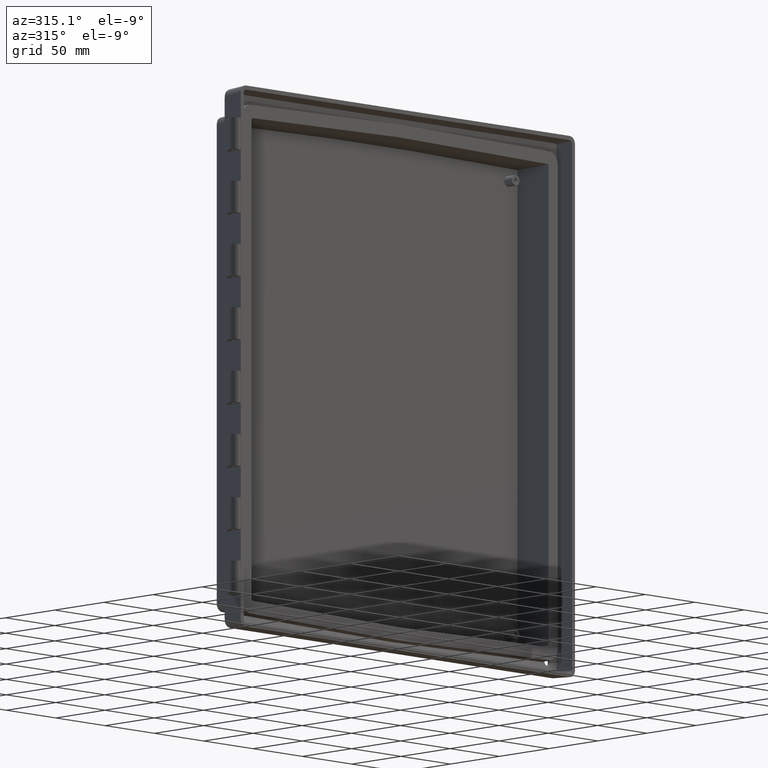
[diagram: clean part render]
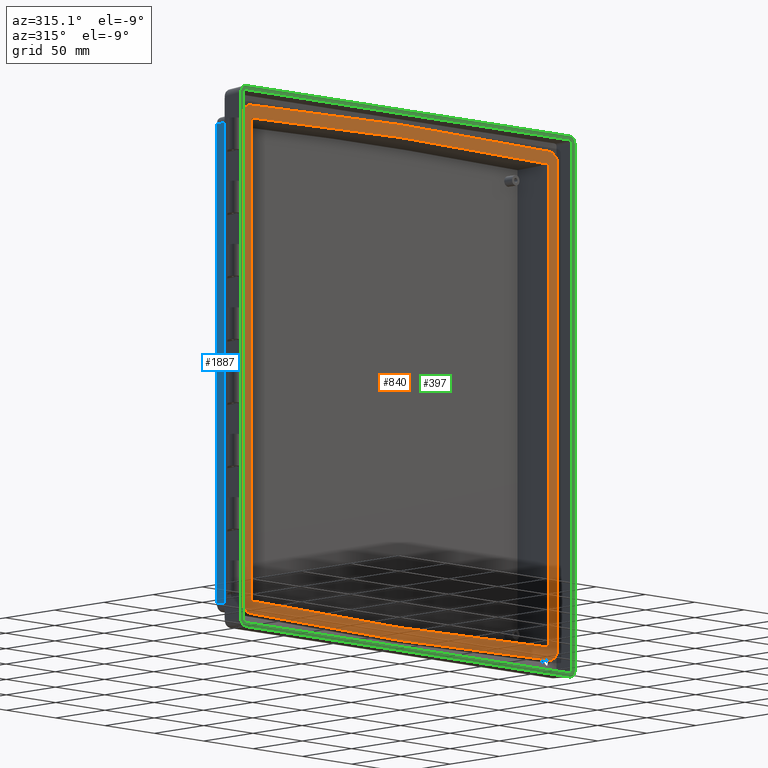
[diagram: same view with three faces highlighted in distinct colors, each labeled with its STEP entity id]
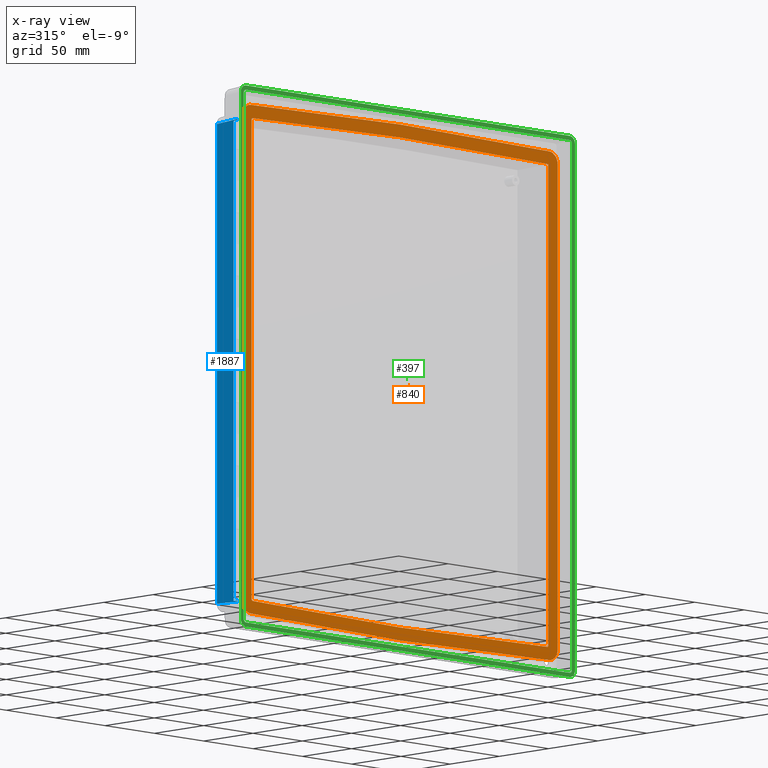
[diagram: x-ray of the same camera — body ghosted, the three highlighted faces saturated]
A machine part, auxiliary view with three faces highlighted in distinct colors.
The next image is the same camera in x-ray (body ghosted, the three faces saturated) — at least one of them is partly hidden behind the body in this view.
Their STEP definitions:

[orange] entity #840 — the highlighted planar face has unit normal (0, -1, 0).
#85 = EDGE_CURVE ( 'NONE', #112, #86, #2757, .T. ) ;
#86 = VERTEX_POINT ( 'NONE', #2752 ) ;
#87 = ORIENTED_EDGE ( 'NONE', *, *, #88, .T. ) ;
#88 = EDGE_CURVE ( 'NONE', #86, #89, #2748, .T. ) ;
#89 = VERTEX_POINT ( 'NONE', #2743 ) ;
#90 = ORIENTED_EDGE ( 'NONE', *, *, #85, .T. ) ;
#91 = ORIENTED_EDGE ( 'NONE', *, *, #9885, .T. ) ;
#92 = ORIENTED_EDGE ( 'NONE', *, *, #9877, .T. ) ;
#109 = ORIENTED_EDGE ( 'NONE', *, *, #110, .T. ) ;
#110 = EDGE_CURVE ( 'NONE', #89, #111, #2792, .T. ) ;
#111 = VERTEX_POINT ( 'NONE', #2787 ) ;
#112 = VERTEX_POINT ( 'NONE', #2786 ) ;
#113 = ORIENTED_EDGE ( 'NONE', *, *, #114, .T. ) ;
#114 = EDGE_CURVE ( 'NONE', #1977, #115, #2783, .T. ) ;
#115 = VERTEX_POINT ( 'NONE', #2776 ) ;
#116 = ORIENTED_EDGE ( 'NONE', *, *, #117, .T. ) ;
#117 = EDGE_CURVE ( 'NONE', #115, #871, #2770, .T. ) ;
#418 = EDGE_CURVE ( 'NONE', #1355, #419, #10249, .T. ) ;
#419 = VERTEX_POINT ( 'NONE', #10233 ) ;
#420 = ORIENTED_EDGE ( 'NONE', *, *, #418, .T. ) ;
#422 = ORIENTED_EDGE ( 'NONE', *, *, #1915, .T. ) ;
#766 = EDGE_LOOP ( 'NONE', ( #2456, #2590, #2500, #2537, #2555, #2595, #2541, #9900, #9897 ) ) ;
#840 = ADVANCED_FACE ( 'NONE', ( #11201, #11202 ), #11226, .T. ) ;
#871 = VERTEX_POINT ( 'NONE', #11325 ) ;
#904 = VERTEX_POINT ( 'NONE', #11322 ) ;
#907 = EDGE_CURVE ( 'NONE', #1115, #904, #11317, .T. ) ;
#1115 = VERTEX_POINT ( 'NONE', #4365 ) ;
#1353 = ORIENTED_EDGE ( 'NONE', *, *, #1354, .F. ) ;
#1354 = EDGE_CURVE ( 'NONE', #1355, #1356, #12136, .T. ) ;
#1355 = VERTEX_POINT ( 'NONE', #12137 ) ;
#1356 = VERTEX_POINT ( 'NONE', #12131 ) ;
#1357 = EDGE_CURVE ( 'NONE', #1356, #1366, #12190, .T. ) ;
#1358 = EDGE_CURVE ( 'NONE', #1366, #1360, #12185, .T. ) ;
#1359 = EDGE_CURVE ( 'NONE', #1360, #1363, #12181, .T. ) ;
#1360 = VERTEX_POINT ( 'NONE', #12176 ) ;
#1361 = EDGE_CURVE ( 'NONE', #1363, #9903, #12175, .T. ) ;
#1362 = ORIENTED_EDGE ( 'NONE', *, *, #1359, .F. ) ;
#1363 = VERTEX_POINT ( 'NONE', #12170 ) ;
#1364 = ORIENTED_EDGE ( 'NONE', *, *, #1358, .F. ) ;
#1365 = ORIENTED_EDGE ( 'NONE', *, *, #1357, .F. ) ;
#1366 = VERTEX_POINT ( 'NONE', #12169 ) ;
#1553 = VERTEX_POINT ( 'NONE', #12671 ) ;
#1609 = EDGE_CURVE ( 'NONE', #1610, #1553, #12804, .T. ) ;
#1610 = VERTEX_POINT ( 'NONE', #12799 ) ;
#1911 = ORIENTED_EDGE ( 'NONE', *, *, #2003, .T. ) ;
#1912 = VERTEX_POINT ( 'NONE', #13362 ) ;
#1913 = ORIENTED_EDGE ( 'NONE', *, *, #9850, .F. ) ;
#1914 = ORIENTED_EDGE ( 'NONE', *, *, #2004, .T. ) ;
#1915 = EDGE_CURVE ( 'NONE', #419, #1916, #13363, .T. ) ;
#1916 = VERTEX_POINT ( 'NONE', #13421 ) ;
#1957 = ORIENTED_EDGE ( 'NONE', *, *, #1958, .T. ) ;
#1958 = EDGE_CURVE ( 'NONE', #871, #1959, #13468, .T. ) ;
#1959 = VERTEX_POINT ( 'NONE', #13464 ) ;
#1960 = ORIENTED_EDGE ( 'NONE', *, *, #1961, .T. ) ;
#1961 = EDGE_CURVE ( 'NONE', #1959, #1115, #13463, .T. ) ;
#1962 = ORIENTED_EDGE ( 'NONE', *, *, #907, .T. ) ;
#1963 = ORIENTED_EDGE ( 'NONE', *, *, #1964, .T. ) ;
#1964 = EDGE_CURVE ( 'NONE', #111, #1965, #13458, .T. ) ;
#1965 = VERTEX_POINT ( 'NONE', #13501 ) ;
#1966 = ORIENTED_EDGE ( 'NONE', *, *, #1967, .T. ) ;
#1967 = EDGE_CURVE ( 'NONE', #1965, #1968, #13500, .T. ) ;
#1968 = VERTEX_POINT ( 'NONE', #13496 ) ;
#1969 = ORIENTED_EDGE ( 'NONE', *, *, #1970, .T. ) ;
#1970 = EDGE_CURVE ( 'NONE', #1968, #1971, #13495, .T. ) ;
#1971 = VERTEX_POINT ( 'NONE', #13491 ) ;
#1972 = ORIENTED_EDGE ( 'NONE', *, *, #1973, .T. ) ;
#1973 = EDGE_CURVE ( 'NONE', #1971, #1974, #13490, .T. ) ;
#1974 = VERTEX_POINT ( 'NONE', #13486 ) ;
#1975 = ORIENTED_EDGE ( 'NONE', *, *, #1976, .T. ) ;
#1976 = EDGE_CURVE ( 'NONE', #1974, #1977, #13485, .T. ) ;
#1977 = VERTEX_POINT ( 'NONE', #13481 ) ;
#1978 = ORIENTED_EDGE ( 'NONE', *, *, #1998, .T. ) ;
#1979 = EDGE_CURVE ( 'NONE', #9922, #1980, #13478, .T. ) ;
#1980 = VERTEX_POINT ( 'NONE', #13480 ) ;
#1981 = EDGE_CURVE ( 'NONE', #1992, #1983, #13479, .T. ) ;
#1982 = ORIENTED_EDGE ( 'NONE', *, *, #1981, .T. ) ;
#1983 = VERTEX_POINT ( 'NONE', #13523 ) ;
#1984 = ORIENTED_EDGE ( 'NONE', *, *, #1993, .T. ) ;
#1985 = EDGE_CURVE ( 'NONE', #1983, #1995, #13522, .T. ) ;
#1986 = VERTEX_POINT ( 'NONE', #13518 ) ;
#1987 = EDGE_CURVE ( 'NONE', #1986, #1988, #13517, .T. ) ;
#1988 = VERTEX_POINT ( 'NONE', #13513 ) ;
#1989 = ORIENTED_EDGE ( 'NONE', *, *, #1990, .T. ) ;
#1990 = EDGE_CURVE ( 'NONE', #1995, #1986, #13512, .T. ) ;
#1991 = ORIENTED_EDGE ( 'NONE', *, *, #1987, .T. ) ;
#1992 = VERTEX_POINT ( 'NONE', #13508 ) ;
#1993 = EDGE_CURVE ( 'NONE', #1980, #1992, #13507, .T. ) ;
#1994 = ORIENTED_EDGE ( 'NONE', *, *, #1985, .T. ) ;
#1995 = VERTEX_POINT ( 'NONE', #13503 ) ;
#1996 = ORIENTED_EDGE ( 'NONE', *, *, #1979, .T. ) ;
#1997 = ORIENTED_EDGE ( 'NONE', *, *, #9924, .F. ) ;
#1998 = EDGE_CURVE ( 'NONE', #1988, #112, #13554, .T. ) ;
#1999 = ORIENTED_EDGE ( 'NONE', *, *, #9868, .F. ) ;
#2000 = ORIENTED_EDGE ( 'NONE', *, *, #9861, .F. ) ;
#2002 = ORIENTED_EDGE ( 'NONE', *, *, #9910, .F. ) ;
#2003 = EDGE_CURVE ( 'NONE', #1912, #9911, #13550, .T. ) ;
#2004 = EDGE_CURVE ( 'NONE', #1916, #1912, #13545, .T. ) ;
#2407 = EDGE_CURVE ( 'NONE', #2408, #2457, #4668, .T. ) ;
#2408 = VERTEX_POINT ( 'NONE', #4653 ) ;
#2456 = ORIENTED_EDGE ( 'NONE', *, *, #2407, .F. ) ;
#2457 = VERTEX_POINT ( 'NONE', #4866 ) ;
#2487 = EDGE_CURVE ( 'NONE', #2488, #2588, #4979, .T. ) ;
#2488 = VERTEX_POINT ( 'NONE', #4962 ) ;
#2494 = VERTEX_POINT ( 'NONE', #5047 ) ;
#2495 = VERTEX_POINT ( 'NONE', #5045 ) ;
#2500 = ORIENTED_EDGE ( 'NONE', *, *, #2604, .F. ) ;
#2501 = VERTEX_POINT ( 'NONE', #5042 ) ;
#2537 = ORIENTED_EDGE ( 'NONE', *, *, #2578, .F. ) ;
#2540 = EDGE_CURVE ( 'NONE', #2588, #2501, #5182, .T. ) ;
#2541 = ORIENTED_EDGE ( 'NONE', *, *, #2487, .F. ) ;
#2555 = ORIENTED_EDGE ( 'NONE', *, *, #2592, .F. ) ;
#2560 = VERTEX_POINT ( 'NONE', #5321 ) ;
#2574 = ORIENTED_EDGE ( 'NONE', *, *, #1361, .F. ) ;
#2578 = EDGE_CURVE ( 'NONE', #2494, #2560, #5281, .T. ) ;
#2588 = VERTEX_POINT ( 'NONE', #5361 ) ;
#2590 = ORIENTED_EDGE ( 'NONE', *, *, #2644, .F. ) ;
#2592 = EDGE_CURVE ( 'NONE', #2501, #2494, #5356, .T. ) ;
#2595 = ORIENTED_EDGE ( 'NONE', *, *, #2540, .F. ) ;
#2604 = EDGE_CURVE ( 'NONE', #2560, #2495, #5427, .T. ) ;
#2644 = EDGE_CURVE ( 'NONE', #2495, #2408, #2724, .T. ) ;
#2719 = DIRECTION ( 'NONE',  ( 0.9998476951563911600, 0.0000000000000000000, -0.01745240643728388300 ) ) ;
#2721 = VECTOR ( 'NONE', #2719, 1000.000000000000200 ) ;
#2722 = CARTESIAN_POINT ( 'NONE',  ( -150.4635631175543700, 3.469446951953614200E-015, -175.5000000000000000 ) ) ;
#2724 = LINE ( 'NONE', #2722, #2721 ) ;
#2743 = CARTESIAN_POINT ( 'NONE',  ( -159.8635631175543800, 3.469446951953614200E-015, 11.50000000000001100 ) ) ;
#2744 = DIRECTION ( 'NONE',  ( -0.0000000000000000000, -0.0000000000000000000, -1.000000000000000000 ) ) ;
#2745 = VECTOR ( 'NONE', #2744, 1000.000000000000000 ) ;
#2746 = CARTESIAN_POINT ( 'NONE',  ( -159.8635631175543500, 3.469446951953614200E-015, 34.50000000000000000 ) ) ;
#2748 = LINE ( 'NONE', #2746, #2745 ) ;
#2752 = CARTESIAN_POINT ( 'NONE',  ( -159.8635631175543500, 3.469446951953614200E-015, 34.50000000000000000 ) ) ;
#2754 = DIRECTION ( 'NONE',  ( 0.0000000000000000000, 0.0000000000000000000, -1.000000000000000000 ) ) ;
#2755 = VECTOR ( 'NONE', #2754, 1000.000000000000000 ) ;
#2756 = CARTESIAN_POINT ( 'NONE',  ( -159.8635631175543800, 3.469446951953614200E-015, 175.5000000000000000 ) ) ;
#2757 = LINE ( 'NONE', #2756, #2755 ) ;
#2765 = DIRECTION ( 'NONE',  ( -0.0000000000000000000, -0.0000000000000000000, -1.000000000000000000 ) ) ;
#2766 = VECTOR ( 'NONE', #2765, 1000.000000000000000 ) ;
#2768 = CARTESIAN_POINT ( 'NONE',  ( -159.8635631175544600, 3.469446951953614200E-015, -149.5000000000000000 ) ) ;
#2770 = LINE ( 'NONE', #2768, #2766 ) ;
#2776 = CARTESIAN_POINT ( 'NONE',  ( -159.8635631175544600, 3.469446951953614200E-015, -149.5000000000000000 ) ) ;
#2778 = DIRECTION ( 'NONE',  ( 0.0000000000000000000, 0.0000000000000000000, -1.000000000000000000 ) ) ;
#2780 = VECTOR ( 'NONE', #2778, 1000.000000000000000 ) ;
#2782 = CARTESIAN_POINT ( 'NONE',  ( -159.8635631175543800, 3.469446951953614200E-015, 175.5000000000000000 ) ) ;
#2783 = LINE ( 'NONE', #2782, #2780 ) ;
#2786 = CARTESIAN_POINT ( 'NONE',  ( -159.8635631175543800, 3.469446951953614200E-015, 57.49999999999999300 ) ) ;
#2787 = CARTESIAN_POINT ( 'NONE',  ( -159.8635631175543800, 3.469446951953614200E-015, -11.50000000000000400 ) ) ;
#2788 = DIRECTION ( 'NONE',  ( 0.0000000000000000000, 0.0000000000000000000, -1.000000000000000000 ) ) ;
#2790 = VECTOR ( 'NONE', #2788, 1000.000000000000000 ) ;
#2791 = CARTESIAN_POINT ( 'NONE',  ( -159.8635631175543800, 3.469446951953614200E-015, 175.5000000000000000 ) ) ;
#2792 = LINE ( 'NONE', #2791, #2790 ) ;
#4365 = CARTESIAN_POINT ( 'NONE',  ( -157.0900062433553000, 5.234352574734210600E-015, -182.5063900706576300 ) ) ;
#4653 = CARTESIAN_POINT ( 'NONE',  ( -9.130384287730726300E-020, 3.469446951953614200E-015, -178.1263512635479200 ) ) ;
#4654 = DIRECTION ( 'NONE',  ( 0.9998476951563911600, 0.0000000000000000000, 0.01745240643728388300 ) ) ;
#4656 = VECTOR ( 'NONE', #4654, 1000.000000000000200 ) ;
#4658 = CARTESIAN_POINT ( 'NONE',  ( -9.130384287730726300E-020, 3.469446951953614200E-015, -178.1263512635479200 ) ) ;
#4668 = LINE ( 'NONE', #4658, #4656 ) ;
#4866 = CARTESIAN_POINT ( 'NONE',  ( 148.9906395393799700, 3.469446951953614200E-015, -175.5257099766913000 ) ) ;
#4962 = CARTESIAN_POINT ( 'NONE',  ( 150.4635631175543700, 3.469446951953614200E-015, 175.5000000000000000 ) ) ;
#4965 = DIRECTION ( 'NONE',  ( -0.9998476951563911600, 0.0000000000000000000, 0.01745240643728388300 ) ) ;
#4966 = VECTOR ( 'NONE', #4965, 1000.000000000000200 ) ;
#4968 = CARTESIAN_POINT ( 'NONE',  ( -9.130384287730726300E-020, 3.469446951953614200E-015, 178.1263512635479200 ) ) ;
#4979 = LINE ( 'NONE', #4968, #4966 ) ;
#5042 = CARTESIAN_POINT ( 'NONE',  ( -148.9906395393799700, 3.469446951953614200E-015, 175.5257099766913000 ) ) ;
#5045 = CARTESIAN_POINT ( 'NONE',  ( -148.9906395393800000, 3.469446951953614200E-015, -175.5257099766913000 ) ) ;
#5047 = CARTESIAN_POINT ( 'NONE',  ( -150.4635631175543700, 3.469446951953614200E-015, 174.0268520542581100 ) ) ;
#5169 = VECTOR ( 'NONE', #5247, 1000.000000000000200 ) ;
#5171 = CARTESIAN_POINT ( 'NONE',  ( -150.4635631175543700, 3.469446951953614200E-015, 175.5000000000000000 ) ) ;
#5182 = LINE ( 'NONE', #5171, #5169 ) ;
#5247 = DIRECTION ( 'NONE',  ( -0.9998476951563911600, -0.0000000000000000000, -0.01745240643728388300 ) ) ;
#5276 = DIRECTION ( 'NONE',  ( 0.0000000000000000000, 0.0000000000000000000, -1.000000000000000000 ) ) ;
#5277 = VECTOR ( 'NONE', #5276, 1000.000000000000000 ) ;
#5279 = CARTESIAN_POINT ( 'NONE',  ( -150.4635631175543700, 3.469446951953614200E-015, 175.5000000000000000 ) ) ;
#5281 = LINE ( 'NONE', #5279, #5277 ) ;
#5321 = CARTESIAN_POINT ( 'NONE',  ( -150.4635631175543700, 3.469446951953614200E-015, -174.0268520542580600 ) ) ;
#5351 = CARTESIAN_POINT ( 'NONE',  ( -150.4635631175543700, 3.469446951953614200E-015, 174.0268520542581100 ) ) ;
#5352 = CARTESIAN_POINT ( 'NONE',  ( -150.4635631175543700, 3.469446951953614200E-015, 174.8931018289885900 ) ) ;
#5353 = CARTESIAN_POINT ( 'NONE',  ( -149.8567573800740100, 3.469446951953614200E-015, 175.5105918335465600 ) ) ;
#5354 = CARTESIAN_POINT ( 'NONE',  ( -148.9906395393799700, 3.469446951953614200E-015, 175.5257099766913000 ) ) ;
#5356 =( BOUNDED_CURVE ( )  B_SPLINE_CURVE ( 3, ( #5354, #5353, #5352, #5351 ),
 .UNSPECIFIED., .F., .T. ) 
 B_SPLINE_CURVE_WITH_KNOTS ( ( 4, 4 ),
 ( 5.507112246722211800, 7.059258367636938500 ),
 .UNSPECIFIED. ) 
 CURVE ( )  GEOMETRIC_REPRESENTATION_ITEM ( )  RATIONAL_B_SPLINE_CURVE ( ( 1.000000000000000000, 0.8091131901567028000, 0.8091131901567028000, 1.000000000000000000 ) ) 
 REPRESENTATION_ITEM ( '' )  );
#5361 = CARTESIAN_POINT ( 'NONE',  ( -9.130384287730726300E-020, 3.469446951953614200E-015, 178.1263512635479200 ) ) ;
#5407 = CARTESIAN_POINT ( 'NONE',  ( -148.9906395393800000, 3.469446951953614200E-015, -175.5257099766913000 ) ) ;
#5408 = CARTESIAN_POINT ( 'NONE',  ( -149.8567573800740400, 3.469446951953613800E-015, -175.5105918335465000 ) ) ;
#5410 = CARTESIAN_POINT ( 'NONE',  ( -150.4635631175544000, 3.469446951953613800E-015, -174.8931018289885600 ) ) ;
#5412 = CARTESIAN_POINT ( 'NONE',  ( -150.4635631175543700, 3.469446951953614200E-015, -174.0268520542580600 ) ) ;
#5427 =( BOUNDED_CURVE ( )  B_SPLINE_CURVE ( 3, ( #5412, #5410, #5408, #5407 ),
 .UNSPECIFIED., .F., .T. ) 
 B_SPLINE_CURVE_WITH_KNOTS ( ( 4, 4 ),
 ( 2.365519593132404000, 3.917665714047149400 ),
 .UNSPECIFIED. ) 
 CURVE ( )  GEOMETRIC_REPRESENTATION_ITEM ( )  RATIONAL_B_SPLINE_CURVE ( ( 1.000000000000000000, 0.8091131901566984700, 0.8091131901566984700, 1.000000000000000000 ) ) 
 REPRESENTATION_ITEM ( '' )  );
#8022 = CARTESIAN_POINT ( 'NONE',  ( -155.3093050462651900, 3.754133903666512100E-015, -183.8004640364516400 ) ) ;
#8039 = CARTESIAN_POINT ( 'NONE',  ( -155.6055248697738600, 0.0000000000000000000, -183.3794165500067900 ) ) ;
#8048 = CARTESIAN_POINT ( 'NONE',  ( -156.6798327042701000, 0.0000000000000000000, -182.6271781059348000 ) ) ;
#8059 = DIRECTION ( 'NONE',  ( 0.0000000000000000000, 0.0000000000000000000, -1.000000000000000000 ) ) ;
#8060 = DIRECTION ( 'NONE',  ( -0.0000000000000000000, 1.000000000000000000, -0.0000000000000000000 ) ) ;
#8061 = CARTESIAN_POINT ( 'NONE',  ( -155.7775978006791600, 3.469446951953614200E-015, -183.6251621632935100 ) ) ;
#8062 = AXIS2_PLACEMENT_3D ( 'NONE', #8061, #8060, #8059 ) ;
#8067 = CIRCLE ( 'NONE', #8062, 0.2999999999999669600 ) ;
#8069 = DIRECTION ( 'NONE',  ( 1.554312234475217900E-013, 0.0000000000000000000, -1.000000000000000000 ) ) ;
#8070 = DIRECTION ( 'NONE',  ( -0.0000000000000000000, 1.000000000000000000, -0.0000000000000000000 ) ) ;
#8071 = CARTESIAN_POINT ( 'NONE',  ( -157.5192622342644900, 3.469446951953614200E-015, -184.9692622342643900 ) ) ;
#8072 = AXIS2_PLACEMENT_3D ( 'NONE', #8071, #8070, #8069 ) ;
#8080 = CIRCLE ( 'NONE', #8072, 2.500000000000002200 ) ;
#8162 = CARTESIAN_POINT ( 'NONE',  ( -156.6798327042701000, 0.0000000000000000000, 182.6271781059348000 ) ) ;
#8163 = DIRECTION ( 'NONE',  ( 0.0000000000000000000, 0.0000000000000000000, -1.000000000000000000 ) ) ;
#8164 = DIRECTION ( 'NONE',  ( 0.0000000000000000000, -1.000000000000000000, 0.0000000000000000000 ) ) ;
#8165 = CARTESIAN_POINT ( 'NONE',  ( -156.8519056351754000, 3.469446951953614200E-015, 182.8729237192214900 ) ) ;
#8166 = AXIS2_PLACEMENT_3D ( 'NONE', #8165, #8164, #8163 ) ;
#8167 = CIRCLE ( 'NONE', #8166, 0.2999999999999947200 ) ;
#8169 = CARTESIAN_POINT ( 'NONE',  ( -155.5400981051902500, 0.0000000000000000000, -183.4418757899793200 ) ) ;
#8183 = DIRECTION ( 'NONE',  ( 0.8191520442889929100, 0.0000000000000000000, 0.5735764363510442700 ) ) ;
#8184 = VECTOR ( 'NONE', #8183, 1000.000000000000200 ) ;
#8185 = CARTESIAN_POINT ( 'NONE',  ( -116.8808960970803200, 3.469446951953614200E-015, 210.4946935310192900 ) ) ;
#8186 = LINE ( 'NONE', #8185, #8184 ) ;
#8191 = CARTESIAN_POINT ( 'NONE',  ( -155.6055248697738600, 0.0000000000000000000, 183.3794165500067900 ) ) ;
#8192 = CARTESIAN_POINT ( 'NONE',  ( -155.5400981051902500, 0.0000000000000000000, 183.4418757899793200 ) ) ;
#8193 = DIRECTION ( 'NONE',  ( 0.0000000000000000000, 0.0000000000000000000, -1.000000000000000000 ) ) ;
#8194 = DIRECTION ( 'NONE',  ( 0.0000000000000000000, -1.000000000000000000, 0.0000000000000000000 ) ) ;
#8195 = CARTESIAN_POINT ( 'NONE',  ( -155.7775978006791600, 3.469446951953614200E-015, 183.6251621632935100 ) ) ;
#8196 = AXIS2_PLACEMENT_3D ( 'NONE', #8195, #8194, #8193 ) ;
#8197 = CIRCLE ( 'NONE', #8196, 0.2999999999999669600 ) ;
#8204 = DIRECTION ( 'NONE',  ( 0.8191520442889929100, 0.0000000000000000000, -0.5735764363510442700 ) ) ;
#8205 = VECTOR ( 'NONE', #8204, 1000.000000000000200 ) ;
#8206 = CARTESIAN_POINT ( 'NONE',  ( 56.71543249703972800, 3.469446951953614200E-015, -332.0481514181514100 ) ) ;
#8207 = LINE ( 'NONE', #8206, #8205 ) ;
#8225 = CARTESIAN_POINT ( 'NONE',  ( -151.2224114589312200, 3.469446951953614200E-015, -184.8881861365433100 ) ) ;
#8232 = DIRECTION ( 'NONE',  ( 6.476300976980193600E-013, 0.0000000000000000000, -1.000000000000000000 ) ) ;
#8233 = DIRECTION ( 'NONE',  ( -0.0000000000000000000, 1.000000000000000000, -0.0000000000000000000 ) ) ;
#8234 = CARTESIAN_POINT ( 'NONE',  ( -156.8519056351754000, 3.469446951953614200E-015, -182.8729237192214900 ) ) ;
#8235 = AXIS2_PLACEMENT_3D ( 'NONE', #8234, #8233, #8232 ) ;
#8242 = CIRCLE ( 'NONE', #8235, 0.2999999999999947200 ) ;
#8250 =( BOUNDED_CURVE ( )  B_SPLINE_CURVE ( 3, ( #8291, #8290, #8289, #8288 ),
 .UNSPECIFIED., .F., .T. ) 
 B_SPLINE_CURVE_WITH_KNOTS ( ( 4, 4 ),
 ( 2.365519593132433800, 3.181691522389632700 ),
 .UNSPECIFIED. ) 
 CURVE ( )  GEOMETRIC_REPRESENTATION_ITEM ( )  RATIONAL_B_SPLINE_CURVE ( ( 1.000000000000000000, 0.9452547298359554900, 0.9452547298359554900, 1.000000000000000000 ) ) 
 REPRESENTATION_ITEM ( '' )  );
#8251 = CARTESIAN_POINT ( 'NONE',  ( 150.4635631175543700, 3.469446951953614200E-015, -174.0268520542580900 ) ) ;
#8252 = DIRECTION ( 'NONE',  ( 0.0000000000000000000, 0.0000000000000000000, 1.000000000000000000 ) ) ;
#8253 = VECTOR ( 'NONE', #8252, 1000.000000000000000 ) ;
#8254 = CARTESIAN_POINT ( 'NONE',  ( 150.4635631175543700, 3.469446951953614200E-015, -175.5000000000000000 ) ) ;
#8255 = LINE ( 'NONE', #8254, #8253 ) ;
#8256 = CARTESIAN_POINT ( 'NONE',  ( 150.4635631175543700, 3.469446951953614200E-015, -174.0268520542580900 ) ) ;
#8257 = CARTESIAN_POINT ( 'NONE',  ( 150.4635631175543700, 3.469446951953614200E-015, -174.8931018289885900 ) ) ;
#8258 = CARTESIAN_POINT ( 'NONE',  ( 149.8567573800740400, 3.469446951953614200E-015, -175.5105918335465000 ) ) ;
#8259 = CARTESIAN_POINT ( 'NONE',  ( 148.9906395393799700, 3.469446951953614200E-015, -175.5257099766913000 ) ) ;
#8260 =( BOUNDED_CURVE ( )  B_SPLINE_CURVE ( 3, ( #8259, #8258, #8257, #8256 ),
 .UNSPECIFIED., .F., .T. ) 
 B_SPLINE_CURVE_WITH_KNOTS ( ( 4, 4 ),
 ( 2.365519593132418700, 3.917665714047163600 ),
 .UNSPECIFIED. ) 
 CURVE ( )  GEOMETRIC_REPRESENTATION_ITEM ( )  RATIONAL_B_SPLINE_CURVE ( ( 1.000000000000000000, 0.8091131901566985800, 0.8091131901566985800, 1.000000000000000000 ) ) 
 REPRESENTATION_ITEM ( '' )  );
#8261 = DIRECTION ( 'NONE',  ( 0.9998476951563911600, 0.0000000000000000000, -0.01745240643728388300 ) ) ;
#8262 = VECTOR ( 'NONE', #8261, 1000.000000000000200 ) ;
#8263 = CARTESIAN_POINT ( 'NONE',  ( -150.6276157380648600, 3.469446951953614200E-015, -184.8985683344700700 ) ) ;
#8268 = LINE ( 'NONE', #8263, #8262 ) ;
#8269 = CARTESIAN_POINT ( 'NONE',  ( 151.2224114589313000, 3.469446951953614200E-015, -184.8881861365433100 ) ) ;
#8270 = DIRECTION ( 'NONE',  ( 0.0000000000000000000, -1.000000000000000000, 0.0000000000000000000 ) ) ;
#8271 = CARTESIAN_POINT ( 'NONE',  ( -157.5192622342644900, 3.469446951953614200E-015, 184.9692622342643900 ) ) ;
#8272 = AXIS2_PLACEMENT_3D ( 'NONE', #8271, #8270, #8316 ) ;
#8273 = CARTESIAN_POINT ( 'NONE',  ( -155.3093050462645700, 3.437490560897035500E-015, 183.8004640364521300 ) ) ;
#8280 = CIRCLE ( 'NONE', #8272, 2.500000000000002200 ) ;
#8288 = CARTESIAN_POINT ( 'NONE',  ( 157.0900062433552800, 3.272408447656744000E-015, 182.5063900706576900 ) ) ;
#8289 = CARTESIAN_POINT ( 'NONE',  ( 158.8854998200273500, 3.469446951953614200E-015, 180.8203238207782100 ) ) ;
#8290 = CARTESIAN_POINT ( 'NONE',  ( 159.8635631175543800, 3.469446951953614200E-015, 178.5593799209135600 ) ) ;
#8291 = CARTESIAN_POINT ( 'NONE',  ( 159.8635631175543800, 3.469446951953614200E-015, 176.0948863249350900 ) ) ;
#8293 = CARTESIAN_POINT ( 'NONE',  ( 157.0900062433552800, 3.272408447656744000E-015, 182.5063900706576900 ) ) ;
#8316 = DIRECTION ( 'NONE',  ( 0.0000000000000000000, 0.0000000000000000000, -1.000000000000000000 ) ) ;
#8333 = CARTESIAN_POINT ( 'NONE',  ( -156.7609024625723200, 0.0000000000000000000, 182.5870593762611000 ) ) ;
#8334 = DIRECTION ( 'NONE',  ( 0.0000000000000000000, 0.0000000000000000000, -1.000000000000000000 ) ) ;
#8335 = DIRECTION ( 'NONE',  ( 0.0000000000000000000, -1.000000000000000000, 0.0000000000000000000 ) ) ;
#8336 = AXIS2_PLACEMENT_3D ( 'NONE', #8344, #8335, #8334 ) ;
#8337 = CIRCLE ( 'NONE', #8336, 2.500000000000002200 ) ;
#8344 = CARTESIAN_POINT ( 'NONE',  ( -157.5192622342644900, 3.469446951953614200E-015, 184.9692622342643900 ) ) ;
#8345 = CARTESIAN_POINT ( 'NONE',  ( -157.0900062433556700, 5.771021223389854600E-016, 182.5063900706573700 ) ) ;
#8347 = CARTESIAN_POINT ( 'NONE',  ( 156.6798327042700400, 0.0000000000000000000, -182.6271781059348300 ) ) ;
#8348 = DIRECTION ( 'NONE',  ( 0.8191520442889881300, 0.0000000000000000000, 0.5735764363510512700 ) ) ;
#8349 = VECTOR ( 'NONE', #8348, 1000.000000000000100 ) ;
#8350 = CARTESIAN_POINT ( 'NONE',  ( 157.8246893905332800, 3.469446951953614200E-015, -181.8255408240435100 ) ) ;
#8351 = LINE ( 'NONE', #8350, #8349 ) ;
#8352 = CARTESIAN_POINT ( 'NONE',  ( 159.8635631175543800, 3.469446951953614200E-015, 176.0948863249350900 ) ) ;
#8353 = DIRECTION ( 'NONE',  ( 0.0000000000000000000, 0.0000000000000000000, 1.000000000000000000 ) ) ;
#8354 = VECTOR ( 'NONE', #8353, 1000.000000000000000 ) ;
#8355 = CARTESIAN_POINT ( 'NONE',  ( 159.8635631175543800, 3.469446951953614200E-015, -175.5000000000000000 ) ) ;
#8356 = LINE ( 'NONE', #8355, #8354 ) ;
#8357 = DIRECTION ( 'NONE',  ( 0.0000000000000000000, 0.0000000000000000000, -1.000000000000000000 ) ) ;
#8358 = DIRECTION ( 'NONE',  ( -0.0000000000000000000, 1.000000000000000000, -0.0000000000000000000 ) ) ;
#8359 = CARTESIAN_POINT ( 'NONE',  ( 155.7775978006791600, 3.469446951953614200E-015, -183.6251621632935100 ) ) ;
#8360 = AXIS2_PLACEMENT_3D ( 'NONE', #8359, #8358, #8357 ) ;
#8361 = CIRCLE ( 'NONE', #8360, 0.2999999999999947200 ) ;
#8362 = DIRECTION ( 'NONE',  ( 7.401486830833822900E-013, 0.0000000000000000000, -1.000000000000000000 ) ) ;
#8363 = DIRECTION ( 'NONE',  ( -0.0000000000000000000, 1.000000000000000000, -0.0000000000000000000 ) ) ;
#8364 = CARTESIAN_POINT ( 'NONE',  ( 156.8519056351754000, 3.469446951953614200E-015, -182.8729237192214900 ) ) ;
#8365 = AXIS2_PLACEMENT_3D ( 'NONE', #8364, #8363, #8362 ) ;
#8366 = CIRCLE ( 'NONE', #8365, 0.3000000000000224700 ) ;
#8367 = CARTESIAN_POINT ( 'NONE',  ( 155.6055248697739400, 0.0000000000000000000, -183.3794165500067400 ) ) ;
#8368 = CARTESIAN_POINT ( 'NONE',  ( 157.0900062433552500, 2.980381786608856800E-015, -182.5063900706576900 ) ) ;
#8369 = CARTESIAN_POINT ( 'NONE',  ( 156.7609024625722600, 0.0000000000000000000, -182.5870593762610700 ) ) ;
#8370 = DIRECTION ( 'NONE',  ( 0.0000000000000000000, 0.0000000000000000000, -1.000000000000000000 ) ) ;
#8371 = DIRECTION ( 'NONE',  ( -0.0000000000000000000, 1.000000000000000000, -0.0000000000000000000 ) ) ;
#8372 = CARTESIAN_POINT ( 'NONE',  ( 157.5192622342644900, 3.469446951953614200E-015, -184.9692622342643900 ) ) ;
#8373 = AXIS2_PLACEMENT_3D ( 'NONE', #8372, #8371, #8370 ) ;
#8374 = CIRCLE ( 'NONE', #8373, 2.500000000000030200 ) ;
#8381 = VECTOR ( 'NONE', #8411, 1000.000000000000200 ) ;
#8382 = CARTESIAN_POINT ( 'NONE',  ( 0.1640526205104685100, 3.469446951953614200E-015, -187.5249195980180200 ) ) ;
#8383 = LINE ( 'NONE', #8382, #8381 ) ;
#8384 = CARTESIAN_POINT ( 'NONE',  ( 155.3093050462650000, 3.902749773558485100E-015, -183.8004640364518100 ) ) ;
#8385 = CARTESIAN_POINT ( 'NONE',  ( 154.0498011838960200, 3.469446951953614200E-015, -184.4932935863714100 ) ) ;
#8386 = CARTESIAN_POINT ( 'NONE',  ( 152.6603806382533700, 3.469446951953614200E-015, -184.8630862911534800 ) ) ;
#8387 = CARTESIAN_POINT ( 'NONE',  ( 151.2224114589313000, 3.469446951953614200E-015, -184.8881861365433100 ) ) ;
#8388 =( BOUNDED_CURVE ( )  B_SPLINE_CURVE ( 3, ( #8387, #8386, #8385, #8384 ),
 .UNSPECIFIED., .F., .T. ) 
 B_SPLINE_CURVE_WITH_KNOTS ( ( 4, 4 ),
 ( 2.365519593132442600, 2.850702565503379300 ),
 .UNSPECIFIED. ) 
 CURVE ( )  GEOMETRIC_REPRESENTATION_ITEM ( )  RATIONAL_B_SPLINE_CURVE ( ( 1.000000000000000000, 0.9804791405430736100, 0.9804791405430736100, 1.000000000000000000 ) ) 
 REPRESENTATION_ITEM ( '' )  );
#8389 = CARTESIAN_POINT ( 'NONE',  ( 159.8635631175543800, 3.469446951953614200E-015, -176.0948863249350900 ) ) ;
#8390 = CARTESIAN_POINT ( 'NONE',  ( 159.8635631175544100, 3.469446951953613800E-015, -178.5593799209135600 ) ) ;
#8391 = CARTESIAN_POINT ( 'NONE',  ( 158.8854998200273200, 3.469446951953613800E-015, -180.8203238207782700 ) ) ;
#8392 = CARTESIAN_POINT ( 'NONE',  ( 157.0900062433552500, 2.980381786608856800E-015, -182.5063900706576900 ) ) ;
#8393 =( BOUNDED_CURVE ( )  B_SPLINE_CURVE ( 3, ( #8392, #8391, #8390, #8389 ),
 .UNSPECIFIED., .F., .T. ) 
 B_SPLINE_CURVE_WITH_KNOTS ( ( 4, 4 ),
 ( 3.101493784789946900, 3.917665714047148900 ),
 .UNSPECIFIED. ) 
 CURVE ( )  GEOMETRIC_REPRESENTATION_ITEM ( )  RATIONAL_B_SPLINE_CURVE ( ( 1.000000000000000000, 0.9452547298359548200, 0.9452547298359548200, 1.000000000000000000 ) ) 
 REPRESENTATION_ITEM ( '' )  );
#8394 = CARTESIAN_POINT ( 'NONE',  ( 159.8635631175543800, 3.469446951953614200E-015, -176.0948863249350900 ) ) ;
#8405 = CARTESIAN_POINT ( 'NONE',  ( -151.2224114589312200, 3.469446951953614200E-015, -184.8881861365433100 ) ) ;
#8406 = CARTESIAN_POINT ( 'NONE',  ( -152.6603806382534300, 3.469446951953614200E-015, -184.8630862911534500 ) ) ;
#8407 = CARTESIAN_POINT ( 'NONE',  ( -154.0498011838961400, 3.469446951953614200E-015, -184.4932935863713200 ) ) ;
#8408 = CARTESIAN_POINT ( 'NONE',  ( -155.3093050462651900, 3.754133903666512100E-015, -183.8004640364516400 ) ) ;
#8409 = CARTESIAN_POINT ( 'NONE',  ( -2.281183522501290100E-015, 3.469446951953614200E-015, -187.5277831471606800 ) ) ;
#8410 =( BOUNDED_CURVE ( )  B_SPLINE_CURVE ( 3, ( #8408, #8407, #8406, #8405 ),
 .UNSPECIFIED., .F., .T. ) 
 B_SPLINE_CURVE_WITH_KNOTS ( ( 4, 4 ),
 ( 3.432482741676177200, 3.917665714047150200 ),
 .UNSPECIFIED. ) 
 CURVE ( )  GEOMETRIC_REPRESENTATION_ITEM ( )  RATIONAL_B_SPLINE_CURVE ( ( 1.000000000000000000, 0.9804791405430706200, 0.9804791405430706200, 1.000000000000000000 ) ) 
 REPRESENTATION_ITEM ( '' )  );
#8411 = DIRECTION ( 'NONE',  ( 0.9998476951563911600, 0.0000000000000000000, 0.01745240643728388300 ) ) ;
#9769 = VERTEX_POINT ( 'NONE', #8039 ) ;
#9780 = VERTEX_POINT ( 'NONE', #8022 ) ;
#9782 = EDGE_CURVE ( 'NONE', #9844, #9780, #8080, .T. ) ;
#9786 = EDGE_CURVE ( 'NONE', #9769, #9844, #8067, .T. ) ;
#9791 = VERTEX_POINT ( 'NONE', #8048 ) ;
#9844 = VERTEX_POINT ( 'NONE', #8169 ) ;
#9850 = EDGE_CURVE ( 'NONE', #9925, #9851, #8167, .T. ) ;
#9851 = VERTEX_POINT ( 'NONE', #8162 ) ;
#9861 = EDGE_CURVE ( 'NONE', #9863, #9862, #8197, .T. ) ;
#9862 = VERTEX_POINT ( 'NONE', #8192 ) ;
#9863 = VERTEX_POINT ( 'NONE', #8191 ) ;
#9868 = EDGE_CURVE ( 'NONE', #9851, #9863, #8186, .T. ) ;
#9877 = EDGE_CURVE ( 'NONE', #9791, #9769, #8207, .T. ) ;
#9885 = EDGE_CURVE ( 'NONE', #904, #9791, #8242, .T. ) ;
#9890 = ORIENTED_EDGE ( 'NONE', *, *, #9893, .T. ) ;
#9891 = VERTEX_POINT ( 'NONE', #8225 ) ;
#9892 = VERTEX_POINT ( 'NONE', #8269 ) ;
#9893 = EDGE_CURVE ( 'NONE', #9891, #9963, #8268, .T. ) ;
#9894 = ORIENTED_EDGE ( 'NONE', *, *, #9782, .T. ) ;
#9895 = ORIENTED_EDGE ( 'NONE', *, *, #9786, .T. ) ;
#9896 = EDGE_LOOP ( 'NONE', ( #9895, #9894, #9960, #9890, #9961, #9957, #9958, #9947, #9938, #9945, #9942, #9940, #9949, #9937, #2574, #1362, #1364, #1365, #1353, #420, #422, #1914, #1911, #2002, #2000, #1999, #1913, #1997, #1996, #1984, #1982, #1994, #1989, #1991, #1978, #90, #87, #109, #1963, #1966, #1969, #1972, #1975, #113, #116, #1957, #1960, #1962, #91, #92 ) ) ;
#9897 = ORIENTED_EDGE ( 'NONE', *, *, #9898, .F. ) ;
#9898 = EDGE_CURVE ( 'NONE', #2457, #9901, #8260, .T. ) ;
#9899 = EDGE_CURVE ( 'NONE', #9901, #2488, #8255, .T. ) ;
#9900 = ORIENTED_EDGE ( 'NONE', *, *, #9899, .F. ) ;
#9901 = VERTEX_POINT ( 'NONE', #8251 ) ;
#9902 = EDGE_CURVE ( 'NONE', #9951, #9903, #8250, .T. ) ;
#9903 = VERTEX_POINT ( 'NONE', #8293 ) ;
#9910 = EDGE_CURVE ( 'NONE', #9862, #9911, #8280, .T. ) ;
#9911 = VERTEX_POINT ( 'NONE', #8273 ) ;
#9922 = VERTEX_POINT ( 'NONE', #8345 ) ;
#9924 = EDGE_CURVE ( 'NONE', #9922, #9925, #8337, .T. ) ;
#9925 = VERTEX_POINT ( 'NONE', #8333 ) ;
#9937 = ORIENTED_EDGE ( 'NONE', *, *, #9902, .T. ) ;
#9938 = ORIENTED_EDGE ( 'NONE', *, *, #9952, .T. ) ;
#9939 = EDGE_CURVE ( 'NONE', #9941, #9943, #8374, .T. ) ;
#9940 = ORIENTED_EDGE ( 'NONE', *, *, #9954, .T. ) ;
#9941 = VERTEX_POINT ( 'NONE', #8369 ) ;
#9942 = ORIENTED_EDGE ( 'NONE', *, *, #9939, .T. ) ;
#9943 = VERTEX_POINT ( 'NONE', #8368 ) ;
#9944 = VERTEX_POINT ( 'NONE', #8367 ) ;
#9945 = ORIENTED_EDGE ( 'NONE', *, *, #9946, .T. ) ;
#9946 = EDGE_CURVE ( 'NONE', #9953, #9941, #8366, .T. ) ;
#9947 = ORIENTED_EDGE ( 'NONE', *, *, #9948, .T. ) ;
#9948 = EDGE_CURVE ( 'NONE', #1553, #9944, #8361, .T. ) ;
#9949 = ORIENTED_EDGE ( 'NONE', *, *, #9950, .T. ) ;
#9950 = EDGE_CURVE ( 'NONE', #9955, #9951, #8356, .T. ) ;
#9951 = VERTEX_POINT ( 'NONE', #8352 ) ;
#9952 = EDGE_CURVE ( 'NONE', #9944, #9953, #8351, .T. ) ;
#9953 = VERTEX_POINT ( 'NONE', #8347 ) ;
#9954 = EDGE_CURVE ( 'NONE', #9943, #9955, #8393, .T. ) ;
#9955 = VERTEX_POINT ( 'NONE', #8394 ) ;
#9956 = EDGE_CURVE ( 'NONE', #9892, #1610, #8388, .T. ) ;
#9957 = ORIENTED_EDGE ( 'NONE', *, *, #9956, .T. ) ;
#9958 = ORIENTED_EDGE ( 'NONE', *, *, #1609, .T. ) ;
#9959 = EDGE_CURVE ( 'NONE', #9963, #9892, #8383, .T. ) ;
#9960 = ORIENTED_EDGE ( 'NONE', *, *, #9962, .T. ) ;
#9961 = ORIENTED_EDGE ( 'NONE', *, *, #9959, .T. ) ;
#9962 = EDGE_CURVE ( 'NONE', #9780, #9891, #8410, .T. ) ;
#9963 = VERTEX_POINT ( 'NONE', #8409 ) ;
#10233 = CARTESIAN_POINT ( 'NONE',  ( 151.2224114589312800, 3.469446951953614200E-015, 184.8881861365433100 ) ) ;
#10249 =( BOUNDED_CURVE ( )  B_SPLINE_CURVE ( 3, ( #10289, #10288, #10287, #10286 ),
 .UNSPECIFIED., .F., .F. ) 
 B_SPLINE_CURVE_WITH_KNOTS ( ( 4, 4 ),
 ( 3.432482741676206900, 3.917665714047143600 ),
 .UNSPECIFIED. ) 
 CURVE ( )  GEOMETRIC_REPRESENTATION_ITEM ( )  RATIONAL_B_SPLINE_CURVE ( ( 1.000000000000000000, 0.9804791405430736100, 0.9804791405430736100, 1.000000000000000000 ) ) 
 REPRESENTATION_ITEM ( '' )  );
#10286 = CARTESIAN_POINT ( 'NONE',  ( 151.2224114589312800, 3.469446951953614200E-015, 184.8881861365433100 ) ) ;
#10287 = CARTESIAN_POINT ( 'NONE',  ( 152.6603806382533400, 3.469446951953614200E-015, 184.8630862911535100 ) ) ;
#10288 = CARTESIAN_POINT ( 'NONE',  ( 154.0498011838959900, 3.469446951953614200E-015, 184.4932935863714400 ) ) ;
#10289 = CARTESIAN_POINT ( 'NONE',  ( 155.3093050462649700, 2.331650571433365600E-015, 183.8004640364518400 ) ) ;
#11201 = FACE_BOUND ( 'NONE', #766, .T. ) ;
#11202 = FACE_OUTER_BOUND ( 'NONE', #9896, .T. ) ;
#11226 = PLANE ( 'NONE',  #11227 ) ;
#11227 = AXIS2_PLACEMENT_3D ( 'NONE', #11252, #11251, #11250 ) ;
#11250 = DIRECTION ( 'NONE',  ( 0.0000000000000000000, -0.0000000000000000000, -1.000000000000000000 ) ) ;
#11251 = DIRECTION ( 'NONE',  ( 0.0000000000000000000, -1.000000000000000000, 0.0000000000000000000 ) ) ;
#11252 = CARTESIAN_POINT ( 'NONE',  ( 159.8635631175543800, 3.469446951953614200E-015, -184.7373542732874800 ) ) ;
#11313 = DIRECTION ( 'NONE',  ( 1.443289932012702200E-013, 0.0000000000000000000, -1.000000000000000000 ) ) ;
#11314 = DIRECTION ( 'NONE',  ( -0.0000000000000000000, 1.000000000000000000, -0.0000000000000000000 ) ) ;
#11315 = CARTESIAN_POINT ( 'NONE',  ( -157.5192622342644900, 3.469446951953614200E-015, -184.9692622342643900 ) ) ;
#11316 = AXIS2_PLACEMENT_3D ( 'NONE', #11315, #11314, #11313 ) ;
#11317 = CIRCLE ( 'NONE', #11316, 2.500000000000002200 ) ;
#11322 = CARTESIAN_POINT ( 'NONE',  ( -156.7609024625723200, 0.0000000000000000000, -182.5870593762611000 ) ) ;
#11325 = CARTESIAN_POINT ( 'NONE',  ( -159.8635631175543800, 3.469446951953614200E-015, -172.5000000000000000 ) ) ;
#12131 = CARTESIAN_POINT ( 'NONE',  ( 155.5400981051903100, 0.0000000000000000000, 183.4418757899792100 ) ) ;
#12132 = DIRECTION ( 'NONE',  ( 0.0000000000000000000, 0.0000000000000000000, -1.000000000000000000 ) ) ;
#12133 = DIRECTION ( 'NONE',  ( 0.0000000000000000000, -1.000000000000000000, 0.0000000000000000000 ) ) ;
#12134 = CARTESIAN_POINT ( 'NONE',  ( 157.5192622342644900, 3.469446951953614200E-015, 184.9692622342643900 ) ) ;
#12135 = AXIS2_PLACEMENT_3D ( 'NONE', #12134, #12133, #12132 ) ;
#12136 = CIRCLE ( 'NONE', #12135, 2.500000000000030200 ) ;
#12137 = CARTESIAN_POINT ( 'NONE',  ( 155.3093050462649700, 2.331650571433365600E-015, 183.8004640364518400 ) ) ;
#12169 = CARTESIAN_POINT ( 'NONE',  ( 155.6055248697739400, 0.0000000000000000000, 183.3794165500067400 ) ) ;
#12170 = CARTESIAN_POINT ( 'NONE',  ( 156.7609024625722600, 0.0000000000000000000, 182.5870593762610700 ) ) ;
#12171 = DIRECTION ( 'NONE',  ( 0.0000000000000000000, 0.0000000000000000000, -1.000000000000000000 ) ) ;
#12172 = DIRECTION ( 'NONE',  ( 0.0000000000000000000, -1.000000000000000000, 0.0000000000000000000 ) ) ;
#12173 = CARTESIAN_POINT ( 'NONE',  ( 157.5192622342644900, 3.469446951953614200E-015, 184.9692622342643900 ) ) ;
#12174 = AXIS2_PLACEMENT_3D ( 'NONE', #12173, #12172, #12171 ) ;
#12175 = CIRCLE ( 'NONE', #12174, 2.500000000000030200 ) ;
#12176 = CARTESIAN_POINT ( 'NONE',  ( 156.6798327042700400, 0.0000000000000000000, 182.6271781059348300 ) ) ;
#12177 = DIRECTION ( 'NONE',  ( 0.0000000000000000000, 0.0000000000000000000, -1.000000000000000000 ) ) ;
#12178 = DIRECTION ( 'NONE',  ( 0.0000000000000000000, -1.000000000000000000, 0.0000000000000000000 ) ) ;
#12179 = CARTESIAN_POINT ( 'NONE',  ( 156.8519056351754000, 3.469446951953614200E-015, 182.8729237192214900 ) ) ;
#12180 = AXIS2_PLACEMENT_3D ( 'NONE', #12179, #12178, #12177 ) ;
#12181 = CIRCLE ( 'NONE', #12180, 0.3000000000000224700 ) ;
#12182 = DIRECTION ( 'NONE',  ( 0.8191520442889881300, 0.0000000000000000000, -0.5735764363510512700 ) ) ;
#12183 = VECTOR ( 'NONE', #12182, 1000.000000000000100 ) ;
#12184 = CARTESIAN_POINT ( 'NONE',  ( 331.4210179846543800, 3.469446951953614200E-015, 60.27208293690841900 ) ) ;
#12185 = LINE ( 'NONE', #12184, #12183 ) ;
#12186 = DIRECTION ( 'NONE',  ( 0.0000000000000000000, 0.0000000000000000000, -1.000000000000000000 ) ) ;
#12187 = DIRECTION ( 'NONE',  ( 0.0000000000000000000, -1.000000000000000000, 0.0000000000000000000 ) ) ;
#12188 = CARTESIAN_POINT ( 'NONE',  ( 155.7775978006791600, 3.469446951953614200E-015, 183.6251621632935100 ) ) ;
#12189 = AXIS2_PLACEMENT_3D ( 'NONE', #12188, #12187, #12186 ) ;
#12190 = CIRCLE ( 'NONE', #12189, 0.2999999999999947200 ) ;
#12671 = CARTESIAN_POINT ( 'NONE',  ( 155.5400981051903100, 0.0000000000000000000, -183.4418757899792100 ) ) ;
#12799 = CARTESIAN_POINT ( 'NONE',  ( 155.3093050462650000, 3.902749773558485100E-015, -183.8004640364518100 ) ) ;
#12800 = DIRECTION ( 'NONE',  ( 0.0000000000000000000, 0.0000000000000000000, -1.000000000000000000 ) ) ;
#12801 = DIRECTION ( 'NONE',  ( -0.0000000000000000000, 1.000000000000000000, -0.0000000000000000000 ) ) ;
#12802 = CARTESIAN_POINT ( 'NONE',  ( 157.5192622342644900, 3.469446951953614200E-015, -184.9692622342643900 ) ) ;
#12803 = AXIS2_PLACEMENT_3D ( 'NONE', #12802, #12801, #12800 ) ;
#12804 = CIRCLE ( 'NONE', #12803, 2.500000000000030200 ) ;
#13362 = CARTESIAN_POINT ( 'NONE',  ( -151.2224114589312200, 3.469446951953614200E-015, 184.8881861365433100 ) ) ;
#13363 = LINE ( 'NONE', #13424, #13423 ) ;
#13421 = CARTESIAN_POINT ( 'NONE',  ( -2.281183522501290100E-015, 3.469446951953614200E-015, 187.5277831471606800 ) ) ;
#13422 = DIRECTION ( 'NONE',  ( -0.9998476951563911600, 0.0000000000000000000, 0.01745240643728388300 ) ) ;
#13423 = VECTOR ( 'NONE', #13422, 1000.000000000000200 ) ;
#13424 = CARTESIAN_POINT ( 'NONE',  ( 0.1640526205104685100, 3.469446951953614200E-015, 187.5249195980180200 ) ) ;
#13456 = VECTOR ( 'NONE', #13502, 1000.000000000000000 ) ;
#13457 = CARTESIAN_POINT ( 'NONE',  ( -159.8635631175543800, 3.469446951953614200E-015, -11.50000000000000400 ) ) ;
#13458 = LINE ( 'NONE', #13457, #13456 ) ;
#13459 = CARTESIAN_POINT ( 'NONE',  ( -157.0900062433553000, 5.234352574734210600E-015, -182.5063900706576300 ) ) ;
#13460 = CARTESIAN_POINT ( 'NONE',  ( -158.8854998200274100, 3.469446951953613800E-015, -180.8203238207782100 ) ) ;
#13461 = CARTESIAN_POINT ( 'NONE',  ( -159.8635631175543200, 3.469446951953613800E-015, -178.5593799209135000 ) ) ;
#13462 = CARTESIAN_POINT ( 'NONE',  ( -159.8635631175543800, 3.469446951953614200E-015, -176.0948863249350900 ) ) ;
#13463 =( BOUNDED_CURVE ( )  B_SPLINE_CURVE ( 3, ( #13462, #13461, #13460, #13459 ),
 .UNSPECIFIED., .F., .T. ) 
 B_SPLINE_CURVE_WITH_KNOTS ( ( 4, 4 ),
 ( 2.365519593132440400, 3.181691522389630500 ),
 .UNSPECIFIED. ) 
 CURVE ( )  GEOMETRIC_REPRESENTATION_ITEM ( )  RATIONAL_B_SPLINE_CURVE ( ( 1.000000000000000000, 0.9452547298359566000, 0.9452547298359566000, 1.000000000000000000 ) ) 
 REPRESENTATION_ITEM ( '' )  );
#13464 = CARTESIAN_POINT ( 'NONE',  ( -159.8635631175543800, 3.469446951953614200E-015, -176.0948863249350900 ) ) ;
#13465 = DIRECTION ( 'NONE',  ( 0.0000000000000000000, 0.0000000000000000000, -1.000000000000000000 ) ) ;
#13466 = VECTOR ( 'NONE', #13465, 1000.000000000000000 ) ;
#13467 = CARTESIAN_POINT ( 'NONE',  ( -159.8635631175543800, 3.469446951953614200E-015, 175.5000000000000000 ) ) ;
#13468 = LINE ( 'NONE', #13467, #13466 ) ;
#13478 =( BOUNDED_CURVE ( )  B_SPLINE_CURVE ( 3, ( #13530, #13529, #13528, #13527 ),
 .UNSPECIFIED., .F., .T. ) 
 B_SPLINE_CURVE_WITH_KNOTS ( ( 4, 4 ),
 ( 3.101493784790007300, 3.917665714047152500 ),
 .UNSPECIFIED. ) 
 CURVE ( )  GEOMETRIC_REPRESENTATION_ITEM ( )  RATIONAL_B_SPLINE_CURVE ( ( 1.000000000000000000, 0.9452547298359625900, 0.9452547298359625900, 1.000000000000000000 ) ) 
 REPRESENTATION_ITEM ( '' )  );
#13479 = LINE ( 'NONE', #13526, #13525 ) ;
#13480 = CARTESIAN_POINT ( 'NONE',  ( -159.8635631175543800, 3.469446951953614200E-015, 176.0948863249350600 ) ) ;
#13481 = CARTESIAN_POINT ( 'NONE',  ( -159.8635631175543800, 3.469446951953614200E-015, -126.5000000000000000 ) ) ;
#13482 = DIRECTION ( 'NONE',  ( -0.0000000000000000000, -0.0000000000000000000, -1.000000000000000000 ) ) ;
#13483 = VECTOR ( 'NONE', #13482, 1000.000000000000000 ) ;
#13484 = CARTESIAN_POINT ( 'NONE',  ( -159.8635631175544300, 3.469446951953614200E-015, -103.5000000000000100 ) ) ;
#13485 = LINE ( 'NONE', #13484, #13483 ) ;
#13486 = CARTESIAN_POINT ( 'NONE',  ( -159.8635631175544300, 3.469446951953614200E-015, -103.5000000000000100 ) ) ;
#13487 = DIRECTION ( 'NONE',  ( 0.0000000000000000000, 0.0000000000000000000, -1.000000000000000000 ) ) ;
#13488 = VECTOR ( 'NONE', #13487, 1000.000000000000000 ) ;
#13489 = CARTESIAN_POINT ( 'NONE',  ( -159.8635631175543800, 3.469446951953614200E-015, 175.5000000000000000 ) ) ;
#13490 = LINE ( 'NONE', #13489, #13488 ) ;
#13491 = CARTESIAN_POINT ( 'NONE',  ( -159.8635631175543800, 3.469446951953614200E-015, -80.50000000000001400 ) ) ;
#13492 = DIRECTION ( 'NONE',  ( -0.0000000000000000000, -0.0000000000000000000, -1.000000000000000000 ) ) ;
#13493 = VECTOR ( 'NONE', #13492, 1000.000000000000000 ) ;
#13494 = CARTESIAN_POINT ( 'NONE',  ( -159.8635631175544100, 3.469446951953614200E-015, -57.50000000000000000 ) ) ;
#13495 = LINE ( 'NONE', #13494, #13493 ) ;
#13496 = CARTESIAN_POINT ( 'NONE',  ( -159.8635631175544100, 3.469446951953614200E-015, -57.50000000000000000 ) ) ;
#13497 = DIRECTION ( 'NONE',  ( 0.0000000000000000000, 0.0000000000000000000, -1.000000000000000000 ) ) ;
#13498 = VECTOR ( 'NONE', #13497, 1000.000000000000000 ) ;
#13499 = CARTESIAN_POINT ( 'NONE',  ( -159.8635631175543800, 3.469446951953614200E-015, 175.5000000000000000 ) ) ;
#13500 = LINE ( 'NONE', #13499, #13498 ) ;
#13501 = CARTESIAN_POINT ( 'NONE',  ( -159.8635631175543800, 3.469446951953614200E-015, -34.50000000000000000 ) ) ;
#13502 = DIRECTION ( 'NONE',  ( -0.0000000000000000000, -0.0000000000000000000, -1.000000000000000000 ) ) ;
#13503 = CARTESIAN_POINT ( 'NONE',  ( -159.8635631175542900, 3.469446951953614200E-015, 126.5000000000000000 ) ) ;
#13504 = DIRECTION ( 'NONE',  ( 0.0000000000000000000, 0.0000000000000000000, -1.000000000000000000 ) ) ;
#13505 = VECTOR ( 'NONE', #13504, 1000.000000000000000 ) ;
#13506 = CARTESIAN_POINT ( 'NONE',  ( -159.8635631175543800, 3.469446951953614200E-015, 175.5000000000000000 ) ) ;
#13507 = LINE ( 'NONE', #13506, #13505 ) ;
#13508 = CARTESIAN_POINT ( 'NONE',  ( -159.8635631175542600, 3.469446951953614200E-015, 172.5000000000000300 ) ) ;
#13509 = DIRECTION ( 'NONE',  ( -0.0000000000000000000, -0.0000000000000000000, -1.000000000000000000 ) ) ;
#13510 = VECTOR ( 'NONE', #13509, 1000.000000000000000 ) ;
#13511 = CARTESIAN_POINT ( 'NONE',  ( -159.8635631175542900, 3.469446951953614200E-015, 126.5000000000000000 ) ) ;
#13512 = LINE ( 'NONE', #13511, #13510 ) ;
#13513 = CARTESIAN_POINT ( 'NONE',  ( -159.8635631175543200, 3.469446951953614200E-015, 80.49999999999998600 ) ) ;
#13514 = DIRECTION ( 'NONE',  ( 0.0000000000000000000, 0.0000000000000000000, -1.000000000000000000 ) ) ;
#13515 = VECTOR ( 'NONE', #13514, 1000.000000000000000 ) ;
#13516 = CARTESIAN_POINT ( 'NONE',  ( -159.8635631175543800, 3.469446951953614200E-015, 175.5000000000000000 ) ) ;
#13517 = LINE ( 'NONE', #13516, #13515 ) ;
#13518 = CARTESIAN_POINT ( 'NONE',  ( -159.8635631175543800, 3.469446951953614200E-015, 103.4999999999999900 ) ) ;
#13519 = DIRECTION ( 'NONE',  ( 0.0000000000000000000, 0.0000000000000000000, -1.000000000000000000 ) ) ;
#13520 = VECTOR ( 'NONE', #13519, 1000.000000000000000 ) ;
#13521 = CARTESIAN_POINT ( 'NONE',  ( -159.8635631175543800, 3.469446951953614200E-015, 175.5000000000000000 ) ) ;
#13522 = LINE ( 'NONE', #13521, #13520 ) ;
#13523 = CARTESIAN_POINT ( 'NONE',  ( -159.8635631175543800, 3.469446951953614200E-015, 149.4999999999999700 ) ) ;
#13524 = DIRECTION ( 'NONE',  ( -0.0000000000000000000, -0.0000000000000000000, -1.000000000000000000 ) ) ;
#13525 = VECTOR ( 'NONE', #13524, 1000.000000000000000 ) ;
#13526 = CARTESIAN_POINT ( 'NONE',  ( -159.8635631175542600, 3.469446951953614200E-015, 172.5000000000000300 ) ) ;
#13527 = CARTESIAN_POINT ( 'NONE',  ( -159.8635631175543800, 3.469446951953614200E-015, 176.0948863249350600 ) ) ;
#13528 = CARTESIAN_POINT ( 'NONE',  ( -159.8635631175543800, 3.469446951953614200E-015, 178.5593799209133300 ) ) ;
#13529 = CARTESIAN_POINT ( 'NONE',  ( -158.8854998200274600, 3.469446951953614200E-015, 180.8203238207779300 ) ) ;
#13530 = CARTESIAN_POINT ( 'NONE',  ( -157.0900062433556700, 5.771021223389854600E-016, 182.5063900706573700 ) ) ;
#13542 = DIRECTION ( 'NONE',  ( -0.9998476951563911600, -0.0000000000000000000, -0.01745240643728388300 ) ) ;
#13543 = VECTOR ( 'NONE', #13542, 1000.000000000000200 ) ;
#13544 = CARTESIAN_POINT ( 'NONE',  ( -150.6276157380648600, 3.469446951953614200E-015, 184.8985683344700700 ) ) ;
#13545 = LINE ( 'NONE', #13544, #13543 ) ;
#13546 = CARTESIAN_POINT ( 'NONE',  ( -155.3093050462645700, 3.437490560897035500E-015, 183.8004640364521300 ) ) ;
#13547 = CARTESIAN_POINT ( 'NONE',  ( -154.0498011838956000, 3.469446951953613800E-015, 184.4932935863714600 ) ) ;
#13548 = CARTESIAN_POINT ( 'NONE',  ( -152.6603806382531200, 3.469446951953613800E-015, 184.8630862911534800 ) ) ;
#13549 = CARTESIAN_POINT ( 'NONE',  ( -151.2224114589312200, 3.469446951953614200E-015, 184.8881861365433100 ) ) ;
#13550 =( BOUNDED_CURVE ( )  B_SPLINE_CURVE ( 3, ( #13549, #13548, #13547, #13546 ),
 .UNSPECIFIED., .F., .T. ) 
 B_SPLINE_CURVE_WITH_KNOTS ( ( 4, 4 ),
 ( 2.365519593132436400, 2.850702565503321100 ),
 .UNSPECIFIED. ) 
 CURVE ( )  GEOMETRIC_REPRESENTATION_ITEM ( )  RATIONAL_B_SPLINE_CURVE ( ( 1.000000000000000000, 0.9804791405430777200, 0.9804791405430777200, 1.000000000000000000 ) ) 
 REPRESENTATION_ITEM ( '' )  );
#13551 = DIRECTION ( 'NONE',  ( -0.0000000000000000000, -0.0000000000000000000, -1.000000000000000000 ) ) ;
#13552 = VECTOR ( 'NONE', #13551, 1000.000000000000000 ) ;
#13553 = CARTESIAN_POINT ( 'NONE',  ( -159.8635631175543200, 3.469446951953614200E-015, 80.49999999999998600 ) ) ;
#13554 = LINE ( 'NONE', #13553, #13552 ) ;

[blue] entity #1887 — the highlighted planar face has unit normal (-0.9986, 0.0523, 0).
#202 = VERTEX_POINT ( 'NONE', #3311 ) ;
#204 = EDGE_CURVE ( 'NONE', #205, #202, #3307, .T. ) ;
#205 = VERTEX_POINT ( 'NONE', #3301 ) ;
#1872 = VERTEX_POINT ( 'NONE', #13304 ) ;
#1873 = ORIENTED_EDGE ( 'NONE', *, *, #1874, .T. ) ;
#1874 = EDGE_CURVE ( 'NONE', #1872, #1875, #13303, .T. ) ;
#1875 = VERTEX_POINT ( 'NONE', #13299 ) ;
#1887 = ADVANCED_FACE ( 'NONE', ( #13346 ), #13344, .T. ) ;
#1888 = EDGE_LOOP ( 'NONE', ( #1946, #1949, #1952, #1955, #1873, #1931, #1934, #1936 ) ) ;
#1931 = ORIENTED_EDGE ( 'NONE', *, *, #1932, .T. ) ;
#1932 = EDGE_CURVE ( 'NONE', #1875, #1933, #13396, .T. ) ;
#1933 = VERTEX_POINT ( 'NONE', #13392 ) ;
#1934 = ORIENTED_EDGE ( 'NONE', *, *, #1935, .T. ) ;
#1935 = EDGE_CURVE ( 'NONE', #1933, #205, #13455, .T. ) ;
#1936 = ORIENTED_EDGE ( 'NONE', *, *, #204, .T. ) ;
#1946 = ORIENTED_EDGE ( 'NONE', *, *, #1947, .T. ) ;
#1947 = EDGE_CURVE ( 'NONE', #202, #1948, #13434, .T. ) ;
#1948 = VERTEX_POINT ( 'NONE', #13430 ) ;
#1949 = ORIENTED_EDGE ( 'NONE', *, *, #1950, .T. ) ;
#1950 = EDGE_CURVE ( 'NONE', #1948, #1951, #13429, .T. ) ;
#1951 = VERTEX_POINT ( 'NONE', #13425 ) ;
#1952 = ORIENTED_EDGE ( 'NONE', *, *, #1953, .F. ) ;
#1953 = EDGE_CURVE ( 'NONE', #1954, #1951, #13477, .T. ) ;
#1954 = VERTEX_POINT ( 'NONE', #13473 ) ;
#1955 = ORIENTED_EDGE ( 'NONE', *, *, #1956, .T. ) ;
#1956 = EDGE_CURVE ( 'NONE', #1954, #1872, #13472, .T. ) ;
#3301 = CARTESIAN_POINT ( 'NONE',  ( -154.4621361761993800, 10.26305314132472000, -175.4696737350491800 ) ) ;
#3302 = DIRECTION ( 'NONE',  ( 7.072252150793127500E-014, 0.0000000000000000000, 1.000000000000000000 ) ) ;
#3304 = VECTOR ( 'NONE', #3302, 1000.000000000000000 ) ;
#3305 = CARTESIAN_POINT ( 'NONE',  ( -154.4621361761994400, 10.26305314132471700, -176.3981929649097300 ) ) ;
#3307 = LINE ( 'NONE', #3305, #3304 ) ;
#3311 = CARTESIAN_POINT ( 'NONE',  ( -154.4621361761993200, 10.26305314132472000, -174.6847589717225700 ) ) ;
#13299 = CARTESIAN_POINT ( 'NONE',  ( -153.2966394387410100, 32.50205569786820800, 174.3041769975909000 ) ) ;
#13300 = DIRECTION ( 'NONE',  ( 0.05226442768871401900, 0.9972646886342372300, -0.05226442768871403900 ) ) ;
#13301 = VECTOR ( 'NONE', #13300, 1000.000000000000200 ) ;
#13302 = CARTESIAN_POINT ( 'NONE',  ( -154.0234429920450300, 18.63381775214739000, 175.0309805508949500 ) ) ;
#13303 = LINE ( 'NONE', #13302, #13301 ) ;
#13304 = CARTESIAN_POINT ( 'NONE',  ( -154.4621361761993200, 10.26305314132471700, 175.4696737350492400 ) ) ;
#13340 = DIRECTION ( 'NONE',  ( -0.05233595624294395300, -0.9986295347545739400, 0.0000000000000000000 ) ) ;
#13341 = DIRECTION ( 'NONE',  ( -0.9986295347545739400, 0.05233595624294395300, 1.527137055861206900E-016 ) ) ;
#13342 = CARTESIAN_POINT ( 'NONE',  ( -155.0000000000000600, 0.0000000000000000000, -181.5000000000000000 ) ) ;
#13343 = AXIS2_PLACEMENT_3D ( 'NONE', #13342, #13341, #13340 ) ;
#13344 = PLANE ( 'NONE',  #13343 ) ;
#13346 = FACE_OUTER_BOUND ( 'NONE', #1888, .T. ) ;
#13392 = CARTESIAN_POINT ( 'NONE',  ( -153.2966394387410700, 32.50205569786820800, -174.3041769975908400 ) ) ;
#13393 = DIRECTION ( 'NONE',  ( -1.529232816288094600E-016, -0.0000000000000000000, -1.000000000000000000 ) ) ;
#13394 = VECTOR ( 'NONE', #13393, 1000.000000000000000 ) ;
#13395 = CARTESIAN_POINT ( 'NONE',  ( -153.2966394387410700, 32.50205569786820100, -174.2256730632264500 ) ) ;
#13396 = LINE ( 'NONE', #13395, #13394 ) ;
#13425 = CARTESIAN_POINT ( 'NONE',  ( -154.2378931350274300, 14.54186526119733500, 174.4605159305507700 ) ) ;
#13426 = DIRECTION ( 'NONE',  ( 1.482560328118636000E-016, -8.905641263178169600E-017, 1.000000000000000000 ) ) ;
#13427 = VECTOR ( 'NONE', #13426, 1000.000000000000000 ) ;
#13428 = CARTESIAN_POINT ( 'NONE',  ( -154.2378931350274300, 14.54186526119733200, 174.5408335138845600 ) ) ;
#13429 = LINE ( 'NONE', #13428, #13427 ) ;
#13430 = CARTESIAN_POINT ( 'NONE',  ( -154.2378931350274900, 14.54186526119736400, -174.4605159305507100 ) ) ;
#13431 = DIRECTION ( 'NONE',  ( 0.05226442768871476100, 0.9972646886342373400, 0.05226442768871476100 ) ) ;
#13432 = VECTOR ( 'NONE', #13431, 999.9999999999998900 ) ;
#13433 = CARTESIAN_POINT ( 'NONE',  ( -156.1755701693863600, -22.43121508807622500, -176.3981929649096100 ) ) ;
#13434 = LINE ( 'NONE', #13433, #13432 ) ;
#13452 = DIRECTION ( 'NONE',  ( -0.05226442768871403200, -0.9972646886342372300, -0.05226442768871403200 ) ) ;
#13453 = VECTOR ( 'NONE', #13452, 1000.000000000000200 ) ;
#13454 = CARTESIAN_POINT ( 'NONE',  ( -155.0150030478363600, -0.2862752064970351400, -176.0225406066861600 ) ) ;
#13455 = LINE ( 'NONE', #13454, #13453 ) ;
#13469 = DIRECTION ( 'NONE',  ( -0.0000000000000000000, 0.0000000000000000000, 1.000000000000000000 ) ) ;
#13470 = VECTOR ( 'NONE', #13469, 1000.000000000000000 ) ;
#13471 = CARTESIAN_POINT ( 'NONE',  ( -154.4621361761993200, 10.26305314132471700, 176.3981929649096700 ) ) ;
#13472 = LINE ( 'NONE', #13471, #13470 ) ;
#13473 = CARTESIAN_POINT ( 'NONE',  ( -154.4621361761993200, 10.26305314132472000, 174.6847589717226300 ) ) ;
#13474 = DIRECTION ( 'NONE',  ( 0.05226442768871464300, 0.9972646886342372300, -0.05226442768871464300 ) ) ;
#13475 = VECTOR ( 'NONE', #13474, 1000.000000000000100 ) ;
#13476 = CARTESIAN_POINT ( 'NONE',  ( -156.1755701693863600, -22.43121508807629300, 176.3981929649096700 ) ) ;
#13477 = LINE ( 'NONE', #13476, #13475 ) ;

[green] entity #397 — the highlighted planar face has unit normal (0, -1, -0).
#52 = VERTEX_POINT ( 'NONE', #10162 ) ;
#54 = VERTEX_POINT ( 'NONE', #10161 ) ;
#56 = EDGE_CURVE ( 'NONE', #54, #52, #10160, .T. ) ;
#379 = VERTEX_POINT ( 'NONE', #4021 ) ;
#380 = ORIENTED_EDGE ( 'NONE', *, *, #381, .F. ) ;
#381 = EDGE_CURVE ( 'NONE', #382, #379, #4019, .T. ) ;
#382 = VERTEX_POINT ( 'NONE', #4014 ) ;
#383 = ORIENTED_EDGE ( 'NONE', *, *, #384, .F. ) ;
#384 = EDGE_CURVE ( 'NONE', #385, #382, #3052, .T. ) ;
#385 = VERTEX_POINT ( 'NONE', #10209 ) ;
#386 = ORIENTED_EDGE ( 'NONE', *, *, #387, .F. ) ;
#387 = EDGE_CURVE ( 'NONE', #388, #385, #10208, .T. ) ;
#388 = VERTEX_POINT ( 'NONE', #10204 ) ;
#397 = ADVANCED_FACE ( 'NONE', ( #10189, #10188 ), #10186, .T. ) ;
#398 = EDGE_LOOP ( 'NONE', ( #399, #400, #461, #464, #380, #383, #386, #446 ) ) ;
#399 = ORIENTED_EDGE ( 'NONE', *, *, #1735, .F. ) ;
#400 = ORIENTED_EDGE ( 'NONE', *, *, #401, .F. ) ;
#401 = EDGE_CURVE ( 'NONE', #402, #1733, #10229, .T. ) ;
#402 = VERTEX_POINT ( 'NONE', #10230 ) ;
#433 = EDGE_CURVE ( 'NONE', #458, #460, #10307, .T. ) ;
#434 = ORIENTED_EDGE ( 'NONE', *, *, #435, .T. ) ;
#435 = EDGE_CURVE ( 'NONE', #460, #436, #10301, .T. ) ;
#436 = VERTEX_POINT ( 'NONE', #10303 ) ;
#437 = ORIENTED_EDGE ( 'NONE', *, *, #438, .T. ) ;
#438 = EDGE_CURVE ( 'NONE', #436, #439, #10302, .T. ) ;
#439 = VERTEX_POINT ( 'NONE', #10293 ) ;
#440 = ORIENTED_EDGE ( 'NONE', *, *, #441, .T. ) ;
#441 = EDGE_CURVE ( 'NONE', #439, #54, #10292, .T. ) ;
#446 = ORIENTED_EDGE ( 'NONE', *, *, #447, .F. ) ;
#447 = EDGE_CURVE ( 'NONE', #1736, #388, #10313, .T. ) ;
#448 = EDGE_LOOP ( 'NONE', ( #449, #450, #453, #456, #459, #434, #437, #440 ) ) ;
#449 = ORIENTED_EDGE ( 'NONE', *, *, #56, .T. ) ;
#450 = ORIENTED_EDGE ( 'NONE', *, *, #451, .T. ) ;
#451 = EDGE_CURVE ( 'NONE', #52, #452, #10341, .T. ) ;
#452 = VERTEX_POINT ( 'NONE', #10343 ) ;
#453 = ORIENTED_EDGE ( 'NONE', *, *, #454, .T. ) ;
#454 = EDGE_CURVE ( 'NONE', #452, #455, #10342, .T. ) ;
#455 = VERTEX_POINT ( 'NONE', #10333 ) ;
#456 = ORIENTED_EDGE ( 'NONE', *, *, #457, .T. ) ;
#457 = EDGE_CURVE ( 'NONE', #455, #458, #10330, .T. ) ;
#458 = VERTEX_POINT ( 'NONE', #10332 ) ;
#459 = ORIENTED_EDGE ( 'NONE', *, *, #433, .T. ) ;
#460 = VERTEX_POINT ( 'NONE', #10331 ) ;
#461 = ORIENTED_EDGE ( 'NONE', *, *, #462, .F. ) ;
#462 = EDGE_CURVE ( 'NONE', #463, #402, #10361, .T. ) ;
#463 = VERTEX_POINT ( 'NONE', #10357 ) ;
#464 = ORIENTED_EDGE ( 'NONE', *, *, #465, .F. ) ;
#465 = EDGE_CURVE ( 'NONE', #379, #463, #10354, .T. ) ;
#1733 = VERTEX_POINT ( 'NONE', #13051 ) ;
#1735 = EDGE_CURVE ( 'NONE', #1733, #1736, #13108, .T. ) ;
#1736 = VERTEX_POINT ( 'NONE', #13104 ) ;
#3052 =( BOUNDED_CURVE ( )  B_SPLINE_CURVE ( 3, ( #10213, #10212, #10211, #10210 ),
 .UNSPECIFIED., .F., .T. ) 
 B_SPLINE_CURVE_WITH_KNOTS ( ( 4, 4 ),
 ( 5.499156671652524900, 7.067213942706647600 ),
 .UNSPECIFIED. ) 
 CURVE ( )  GEOMETRIC_REPRESENTATION_ITEM ( )  RATIONAL_B_SPLINE_CURVE ( ( 1.000000000000000000, 0.8053830134673557500, 0.8053830134673557500, 1.000000000000000000 ) ) 
 REPRESENTATION_ITEM ( '' )  );
#4014 = CARTESIAN_POINT ( 'NONE',  ( 166.4151451962707100, -7.999999999999996400, -191.1685713593840600 ) ) ;
#4015 = DIRECTION ( 'NONE',  ( -2.828593693312501600E-016, 0.0000000000000000000, 1.000000000000000000 ) ) ;
#4016 = VECTOR ( 'NONE', #4015, 1000.000000000000000 ) ;
#4018 = CARTESIAN_POINT ( 'NONE',  ( 166.4151451962706000, -7.999999999999996400, 196.2500000000000300 ) ) ;
#4019 = LINE ( 'NONE', #4018, #4016 ) ;
#4021 = CARTESIAN_POINT ( 'NONE',  ( 166.4151451962706000, -7.999999999999996400, 191.1685713593841700 ) ) ;
#10157 = DIRECTION ( 'NONE',  ( -5.657187386625003200E-016, -0.0000000000000000000, -1.000000000000000000 ) ) ;
#10158 = VECTOR ( 'NONE', #10157, 1000.000000000000000 ) ;
#10159 = CARTESIAN_POINT ( 'NONE',  ( -169.4192622342642700, -7.999999999999996400, 196.2500000000000300 ) ) ;
#10160 = LINE ( 'NONE', #10159, #10158 ) ;
#10161 = CARTESIAN_POINT ( 'NONE',  ( -169.4192622342642700, -7.999999999999996400, 191.1767997931141800 ) ) ;
#10162 = CARTESIAN_POINT ( 'NONE',  ( -169.4192622342644900, -7.999999999999996400, -191.1767997931140100 ) ) ;
#10185 = CARTESIAN_POINT ( 'NONE',  ( 169.0000000000000300, -7.999999999999996400, 196.2500000000000300 ) ) ;
#10186 = PLANE ( 'NONE',  #10187 ) ;
#10187 = AXIS2_PLACEMENT_3D ( 'NONE', #10185, #10232, #10231 ) ;
#10188 = FACE_OUTER_BOUND ( 'NONE', #448, .T. ) ;
#10189 = FACE_BOUND ( 'NONE', #398, .T. ) ;
#10204 = CARTESIAN_POINT ( 'NONE',  ( -163.9185713593842900, -7.999999999999996400, -193.6651451962705200 ) ) ;
#10205 = DIRECTION ( 'NONE',  ( 1.000000000000000000, 0.0000000000000000000, 0.0000000000000000000 ) ) ;
#10206 = VECTOR ( 'NONE', #10205, 1000.000000000000000 ) ;
#10207 = CARTESIAN_POINT ( 'NONE',  ( 169.0000000000000300, -7.999999999999996400, -193.6651451962704900 ) ) ;
#10208 = LINE ( 'NONE', #10207, #10206 ) ;
#10209 = CARTESIAN_POINT ( 'NONE',  ( 163.9185713593842900, -7.999999999999996400, -193.6651451962704900 ) ) ;
#10210 = CARTESIAN_POINT ( 'NONE',  ( 166.4151451962707100, -7.999999999999996400, -191.1685713593840600 ) ) ;
#10211 = CARTESIAN_POINT ( 'NONE',  ( 166.4151451962707100, -7.999999999999996400, -192.6318588405285700 ) ) ;
#10212 = CARTESIAN_POINT ( 'NONE',  ( 165.3818588405288200, -7.999999999999996400, -193.6651451962705200 ) ) ;
#10213 = CARTESIAN_POINT ( 'NONE',  ( 163.9185713593842900, -7.999999999999996400, -193.6651451962704900 ) ) ;
#10225 = CARTESIAN_POINT ( 'NONE',  ( -166.4151451962704900, -7.999999999999996400, 191.1685713593841700 ) ) ;
#10226 = CARTESIAN_POINT ( 'NONE',  ( -166.4151451962704900, -7.999999999999996400, 192.6318588405286500 ) ) ;
#10227 = CARTESIAN_POINT ( 'NONE',  ( -165.3818588405285400, -7.999999999999996400, 193.6651451962706000 ) ) ;
#10228 = CARTESIAN_POINT ( 'NONE',  ( -163.9185713593840300, -7.999999999999996400, 193.6651451962706000 ) ) ;
#10229 =( BOUNDED_CURVE ( )  B_SPLINE_CURVE ( 3, ( #10228, #10227, #10226, #10225 ),
 .UNSPECIFIED., .F., .T. ) 
 B_SPLINE_CURVE_WITH_KNOTS ( ( 4, 4 ),
 ( 5.499156671652524900, 7.067213942706636900 ),
 .UNSPECIFIED. ) 
 CURVE ( )  GEOMETRIC_REPRESENTATION_ITEM ( )  RATIONAL_B_SPLINE_CURVE ( ( 1.000000000000000000, 0.8053830134673580800, 0.8053830134673580800, 1.000000000000000000 ) ) 
 REPRESENTATION_ITEM ( '' )  );
#10230 = CARTESIAN_POINT ( 'NONE',  ( -163.9185713593840300, -7.999999999999996400, 193.6651451962706000 ) ) ;
#10231 = DIRECTION ( 'NONE',  ( 0.0000000000000000000, 0.0000000000000000000, -1.000000000000000000 ) ) ;
#10232 = DIRECTION ( 'NONE',  ( 0.0000000000000000000, -1.000000000000000000, -0.0000000000000000000 ) ) ;
#10292 =( BOUNDED_CURVE ( )  B_SPLINE_CURVE ( 3, ( #10325, #10324, #10323, #10322 ),
 .UNSPECIFIED., .F., .T. ) 
 B_SPLINE_CURVE_WITH_KNOTS ( ( 4, 4 ),
 ( 5.499156671652510700, 7.067213942706642300 ),
 .UNSPECIFIED. ) 
 CURVE ( )  GEOMETRIC_REPRESENTATION_ITEM ( )  RATIONAL_B_SPLINE_CURVE ( ( 1.000000000000000000, 0.8053830134673536400, 0.8053830134673536400, 1.000000000000000000 ) ) 
 REPRESENTATION_ITEM ( '' )  );
#10293 = CARTESIAN_POINT ( 'NONE',  ( -163.9267997931139900, -7.999999999999996400, 196.6692622342643800 ) ) ;
#10294 = DIRECTION ( 'NONE',  ( -1.000000000000000000, -0.0000000000000000000, -0.0000000000000000000 ) ) ;
#10295 = VECTOR ( 'NONE', #10294, 1000.000000000000000 ) ;
#10296 = CARTESIAN_POINT ( 'NONE',  ( 169.0000000000000300, -7.999999999999996400, 196.6692622342643800 ) ) ;
#10297 = CARTESIAN_POINT ( 'NONE',  ( 163.9267997931141800, -7.999999999999996400, 196.6692622342643800 ) ) ;
#10298 = CARTESIAN_POINT ( 'NONE',  ( 167.1460322516321900, -7.999999999999998200, 196.6692622342644100 ) ) ;
#10299 = CARTESIAN_POINT ( 'NONE',  ( 169.4192622342644100, -7.999999999999998200, 194.3960322516321400 ) ) ;
#10300 = CARTESIAN_POINT ( 'NONE',  ( 169.4192622342643800, -7.999999999999996400, 191.1767997931142100 ) ) ;
#10301 =( BOUNDED_CURVE ( )  B_SPLINE_CURVE ( 3, ( #10300, #10299, #10298, #10297 ),
 .UNSPECIFIED., .F., .T. ) 
 B_SPLINE_CURVE_WITH_KNOTS ( ( 4, 4 ),
 ( 5.499156671652531100, 7.067213942706646700 ),
 .UNSPECIFIED. ) 
 CURVE ( )  GEOMETRIC_REPRESENTATION_ITEM ( )  RATIONAL_B_SPLINE_CURVE ( ( 1.000000000000000000, 0.8053830134673574100, 0.8053830134673574100, 1.000000000000000000 ) ) 
 REPRESENTATION_ITEM ( '' )  );
#10302 = LINE ( 'NONE', #10296, #10295 ) ;
#10303 = CARTESIAN_POINT ( 'NONE',  ( 163.9267997931141800, -7.999999999999996400, 196.6692622342643800 ) ) ;
#10304 = DIRECTION ( 'NONE',  ( -2.828593693312501600E-016, -0.0000000000000000000, 1.000000000000000000 ) ) ;
#10305 = VECTOR ( 'NONE', #10304, 1000.000000000000000 ) ;
#10306 = CARTESIAN_POINT ( 'NONE',  ( 169.4192622342643800, -7.999999999999996400, 196.2500000000000300 ) ) ;
#10307 = LINE ( 'NONE', #10306, #10305 ) ;
#10309 = CARTESIAN_POINT ( 'NONE',  ( -163.9185713593842900, -7.999999999999996400, -193.6651451962705200 ) ) ;
#10310 = CARTESIAN_POINT ( 'NONE',  ( -165.3818588405288200, -7.999999999999996400, -193.6651451962705400 ) ) ;
#10311 = CARTESIAN_POINT ( 'NONE',  ( -166.4151451962707100, -7.999999999999996400, -192.6318588405286200 ) ) ;
#10312 = CARTESIAN_POINT ( 'NONE',  ( -166.4151451962707100, -7.999999999999996400, -191.1685713593840900 ) ) ;
#10313 =( BOUNDED_CURVE ( )  B_SPLINE_CURVE ( 3, ( #10312, #10311, #10310, #10309 ),
 .UNSPECIFIED., .F., .T. ) 
 B_SPLINE_CURVE_WITH_KNOTS ( ( 4, 4 ),
 ( 5.499156671652524900, 7.067213942706647600 ),
 .UNSPECIFIED. ) 
 CURVE ( )  GEOMETRIC_REPRESENTATION_ITEM ( )  RATIONAL_B_SPLINE_CURVE ( ( 1.000000000000000000, 0.8053830134673557500, 0.8053830134673557500, 1.000000000000000000 ) ) 
 REPRESENTATION_ITEM ( '' )  );
#10322 = CARTESIAN_POINT ( 'NONE',  ( -169.4192622342642700, -7.999999999999996400, 191.1767997931141800 ) ) ;
#10323 = CARTESIAN_POINT ( 'NONE',  ( -169.4192622342642700, -7.999999999999996400, 194.3960322516322200 ) ) ;
#10324 = CARTESIAN_POINT ( 'NONE',  ( -167.1460322516319400, -7.999999999999996400, 196.6692622342645200 ) ) ;
#10325 = CARTESIAN_POINT ( 'NONE',  ( -163.9267997931139900, -7.999999999999996400, 196.6692622342643800 ) ) ;
#10326 = CARTESIAN_POINT ( 'NONE',  ( 169.4192622342644900, -7.999999999999996400, -191.1767997931139600 ) ) ;
#10327 = CARTESIAN_POINT ( 'NONE',  ( 169.4192622342646100, -7.999999999999998200, -194.3960322516319100 ) ) ;
#10328 = CARTESIAN_POINT ( 'NONE',  ( 167.1460322516323100, -7.999999999999998200, -196.6692622342643200 ) ) ;
#10329 = CARTESIAN_POINT ( 'NONE',  ( 163.9267997931143300, -7.999999999999996400, -196.6692622342642700 ) ) ;
#10330 =( BOUNDED_CURVE ( )  B_SPLINE_CURVE ( 3, ( #10329, #10328, #10327, #10326 ),
 .UNSPECIFIED., .F., .T. ) 
 B_SPLINE_CURVE_WITH_KNOTS ( ( 4, 4 ),
 ( 5.499156671652531100, 7.067213942706667100 ),
 .UNSPECIFIED. ) 
 CURVE ( )  GEOMETRIC_REPRESENTATION_ITEM ( )  RATIONAL_B_SPLINE_CURVE ( ( 1.000000000000000000, 0.8053830134673525300, 0.8053830134673525300, 1.000000000000000000 ) ) 
 REPRESENTATION_ITEM ( '' )  );
#10331 = CARTESIAN_POINT ( 'NONE',  ( 169.4192622342643800, -7.999999999999996400, 191.1767997931142100 ) ) ;
#10332 = CARTESIAN_POINT ( 'NONE',  ( 169.4192622342644900, -7.999999999999996400, -191.1767997931139600 ) ) ;
#10333 = CARTESIAN_POINT ( 'NONE',  ( 163.9267997931143300, -7.999999999999996400, -196.6692622342642700 ) ) ;
#10334 = DIRECTION ( 'NONE',  ( 1.000000000000000000, -0.0000000000000000000, -0.0000000000000000000 ) ) ;
#10335 = VECTOR ( 'NONE', #10334, 1000.000000000000000 ) ;
#10336 = CARTESIAN_POINT ( 'NONE',  ( 169.0000000000001400, -7.999999999999996400, -196.6692622342642700 ) ) ;
#10337 = CARTESIAN_POINT ( 'NONE',  ( -163.9267997931142400, -7.999999999999996400, -196.6692622342642700 ) ) ;
#10338 = CARTESIAN_POINT ( 'NONE',  ( -167.1460322516323100, -7.999999999999996400, -196.6692622342644400 ) ) ;
#10339 = CARTESIAN_POINT ( 'NONE',  ( -169.4192622342646400, -7.999999999999996400, -194.3960322516320500 ) ) ;
#10340 = CARTESIAN_POINT ( 'NONE',  ( -169.4192622342644900, -7.999999999999996400, -191.1767997931140100 ) ) ;
#10341 =( BOUNDED_CURVE ( )  B_SPLINE_CURVE ( 3, ( #10340, #10339, #10338, #10337 ),
 .UNSPECIFIED., .F., .T. ) 
 B_SPLINE_CURVE_WITH_KNOTS ( ( 4, 4 ),
 ( 5.499156671652510700, 7.067213942706657400 ),
 .UNSPECIFIED. ) 
 CURVE ( )  GEOMETRIC_REPRESENTATION_ITEM ( )  RATIONAL_B_SPLINE_CURVE ( ( 1.000000000000000000, 0.8053830134673500800, 0.8053830134673500800, 1.000000000000000000 ) ) 
 REPRESENTATION_ITEM ( '' )  );
#10342 = LINE ( 'NONE', #10336, #10335 ) ;
#10343 = CARTESIAN_POINT ( 'NONE',  ( -163.9267997931142400, -7.999999999999996400, -196.6692622342642700 ) ) ;
#10350 = CARTESIAN_POINT ( 'NONE',  ( 163.9185713593841700, -7.999999999999996400, 193.6651451962706000 ) ) ;
#10351 = CARTESIAN_POINT ( 'NONE',  ( 165.3818588405287100, -7.999999999999996400, 193.6651451962706300 ) ) ;
#10352 = CARTESIAN_POINT ( 'NONE',  ( 166.4151451962706300, -7.999999999999996400, 192.6318588405286800 ) ) ;
#10353 = CARTESIAN_POINT ( 'NONE',  ( 166.4151451962706000, -7.999999999999996400, 191.1685713593841700 ) ) ;
#10354 =( BOUNDED_CURVE ( )  B_SPLINE_CURVE ( 3, ( #10353, #10352, #10351, #10350 ),
 .UNSPECIFIED., .F., .T. ) 
 B_SPLINE_CURVE_WITH_KNOTS ( ( 4, 4 ),
 ( 5.499156671652524900, 7.067213942706647600 ),
 .UNSPECIFIED. ) 
 CURVE ( )  GEOMETRIC_REPRESENTATION_ITEM ( )  RATIONAL_B_SPLINE_CURVE ( ( 1.000000000000000000, 0.8053830134673557500, 0.8053830134673557500, 1.000000000000000000 ) ) 
 REPRESENTATION_ITEM ( '' )  );
#10357 = CARTESIAN_POINT ( 'NONE',  ( 163.9185713593841700, -7.999999999999996400, 193.6651451962706000 ) ) ;
#10358 = DIRECTION ( 'NONE',  ( -1.000000000000000000, 0.0000000000000000000, 0.0000000000000000000 ) ) ;
#10359 = VECTOR ( 'NONE', #10358, 1000.000000000000000 ) ;
#10360 = CARTESIAN_POINT ( 'NONE',  ( 169.0000000000000300, -7.999999999999996400, 193.6651451962706000 ) ) ;
#10361 = LINE ( 'NONE', #10360, #10359 ) ;
#13051 = CARTESIAN_POINT ( 'NONE',  ( -166.4151451962704900, -7.999999999999996400, 191.1685713593841700 ) ) ;
#13104 = CARTESIAN_POINT ( 'NONE',  ( -166.4151451962707100, -7.999999999999996400, -191.1685713593840900 ) ) ;
#13105 = DIRECTION ( 'NONE',  ( -5.657187386625003200E-016, 0.0000000000000000000, -1.000000000000000000 ) ) ;
#13106 = VECTOR ( 'NONE', #13105, 1000.000000000000000 ) ;
#13107 = CARTESIAN_POINT ( 'NONE',  ( -166.4151451962705400, -7.999999999999996400, 196.2500000000002300 ) ) ;
#13108 = LINE ( 'NONE', #13107, #13106 ) ;